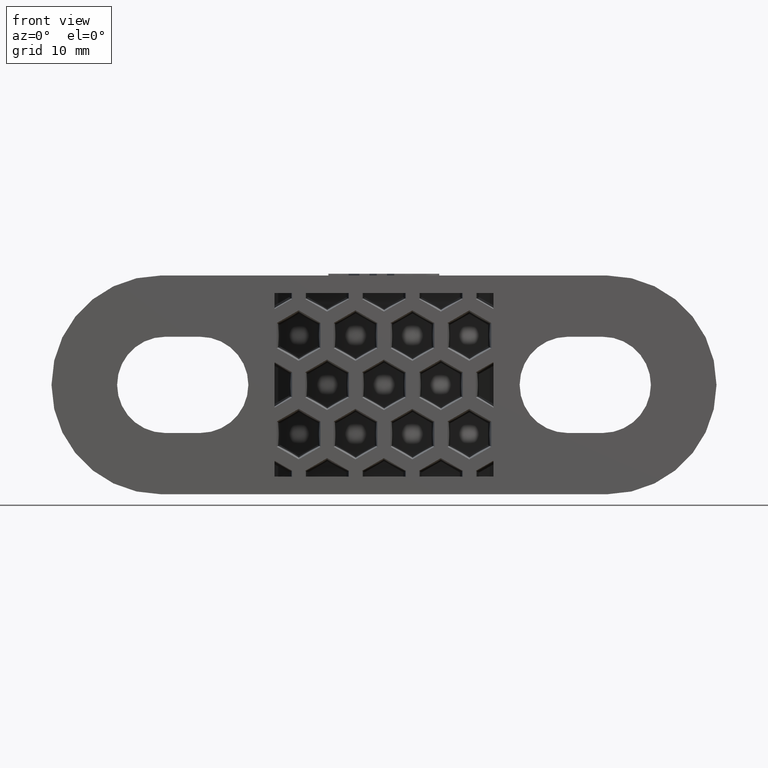
[diagram: clean part render]
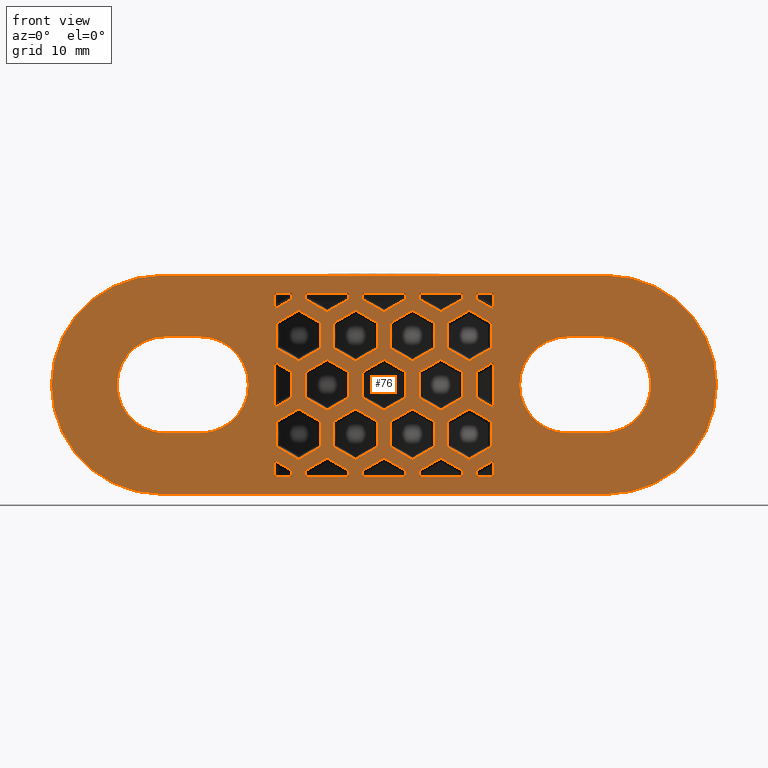
[diagram: same view with one face highlighted and labeled with its STEP entity id]
A machine part, front view. The second image highlights one B-rep face of the part: STEP entity #76.
In plain terms, the highlighted planar face has unit normal (0, -1, 0).
Its self-contained STEP definition (entity closure, byte-faithful):
#76 = ADVANCED_FACE( '', ( #313, #314, #315, #316, #317, #318, #319, #320, #321, #322, #323, #324, #325, #326, #327, #328, #329, #330, #331, #332, #333, #334, #335, #336, #337, #338 ), #339, .T. );
#313 = FACE_BOUND( '', #805, .T. );
#314 = FACE_BOUND( '', #806, .T. );
#315 = FACE_BOUND( '', #807, .T. );
#316 = FACE_BOUND( '', #808, .T. );
#317 = FACE_BOUND( '', #809, .T. );
#318 = FACE_BOUND( '', #810, .T. );
#319 = FACE_BOUND( '', #811, .T. );
#320 = FACE_BOUND( '', #812, .T. );
#321 = FACE_BOUND( '', #813, .T. );
#322 = FACE_BOUND( '', #814, .T. );
#323 = FACE_BOUND( '', #815, .T. );
#324 = FACE_BOUND( '', #816, .T. );
#325 = FACE_BOUND( '', #817, .T. );
#326 = FACE_OUTER_BOUND( '', #818, .T. );
#327 = FACE_BOUND( '', #819, .T. );
#328 = FACE_BOUND( '', #820, .T. );
#329 = FACE_BOUND( '', #821, .T. );
#330 = FACE_BOUND( '', #822, .T. );
#331 = FACE_BOUND( '', #823, .T. );
#332 = FACE_BOUND( '', #824, .T. );
#333 = FACE_BOUND( '', #825, .T. );
#334 = FACE_BOUND( '', #826, .T. );
#335 = FACE_BOUND( '', #827, .T. );
#336 = FACE_BOUND( '', #828, .T. );
#337 = FACE_BOUND( '', #829, .T. );
#338 = FACE_BOUND( '', #830, .T. );
#339 = PLANE( '', #831 );
#805 = EDGE_LOOP( '', ( #1859, #1860, #1861, #1862 ) );
#806 = EDGE_LOOP( '', ( #1863, #1864, #1865, #1866 ) );
#807 = EDGE_LOOP( '', ( #1867, #1868, #1869, #1870 ) );
#808 = EDGE_LOOP( '', ( #1871, #1872, #1873, #1874 ) );
#809 = EDGE_LOOP( '', ( #1875, #1876, #1877, #1878 ) );
#810 = EDGE_LOOP( '', ( #1879, #1880, #1881, #1882, #1883 ) );
#811 = EDGE_LOOP( '', ( #1884, #1885, #1886, #1887, #1888 ) );
#812 = EDGE_LOOP( '', ( #1889, #1890, #1891, #1892, #1893 ) );
#813 = EDGE_LOOP( '', ( #1894, #1895, #1896, #1897 ) );
#814 = EDGE_LOOP( '', ( #1898, #1899, #1900, #1901, #1902 ) );
#815 = EDGE_LOOP( '', ( #1903, #1904, #1905, #1906, #1907 ) );
#816 = EDGE_LOOP( '', ( #1908, #1909, #1910, #1911, #1912, #1913 ) );
#817 = EDGE_LOOP( '', ( #1914, #1915, #1916, #1917, #1918 ) );
#818 = EDGE_LOOP( '', ( #1919, #1920, #1921, #1922, #1923, #1924 ) );
#819 = EDGE_LOOP( '', ( #1925, #1926, #1927, #1928, #1929, #1930 ) );
#820 = EDGE_LOOP( '', ( #1931, #1932, #1933, #1934, #1935, #1936 ) );
#821 = EDGE_LOOP( '', ( #1937, #1938, #1939, #1940, #1941, #1942 ) );
#822 = EDGE_LOOP( '', ( #1943, #1944, #1945, #1946, #1947, #1948 ) );
#823 = EDGE_LOOP( '', ( #1949, #1950, #1951, #1952, #1953, #1954 ) );
#824 = EDGE_LOOP( '', ( #1955, #1956, #1957, #1958, #1959, #1960 ) );
#825 = EDGE_LOOP( '', ( #1961, #1962, #1963, #1964, #1965, #1966 ) );
#826 = EDGE_LOOP( '', ( #1967, #1968, #1969, #1970, #1971, #1972 ) );
#827 = EDGE_LOOP( '', ( #1973, #1974, #1975, #1976, #1977, #1978 ) );
#828 = EDGE_LOOP( '', ( #1979, #1980, #1981, #1982, #1983, #1984 ) );
#829 = EDGE_LOOP( '', ( #1985, #1986, #1987, #1988, #1989, #1990 ) );
#830 = EDGE_LOOP( '', ( #1991, #1992, #1993, #1994, #1995, #1996 ) );
#831 = AXIS2_PLACEMENT_3D( '', #1997, #1998, #1999 );
#1859 = ORIENTED_EDGE( '', *, *, #3686, .F. );
#1860 = ORIENTED_EDGE( '', *, *, #3687, .T. );
#1861 = ORIENTED_EDGE( '', *, *, #3688, .T. );
#1862 = ORIENTED_EDGE( '', *, *, #3689, .F. );
#1863 = ORIENTED_EDGE( '', *, *, #3690, .F. );
#1864 = ORIENTED_EDGE( '', *, *, #3691, .T. );
#1865 = ORIENTED_EDGE( '', *, *, #3692, .F. );
#1866 = ORIENTED_EDGE( '', *, *, #3693, .F. );
#1867 = ORIENTED_EDGE( '', *, *, #3694, .F. );
#1868 = ORIENTED_EDGE( '', *, *, #3695, .F. );
#1869 = ORIENTED_EDGE( '', *, *, #3696, .F. );
#1870 = ORIENTED_EDGE( '', *, *, #3697, .T. );
#1871 = ORIENTED_EDGE( '', *, *, #3698, .F. );
#1872 = ORIENTED_EDGE( '', *, *, #3699, .F. );
#1873 = ORIENTED_EDGE( '', *, *, #3700, .F. );
#1874 = ORIENTED_EDGE( '', *, *, #3701, .F. );
#1875 = ORIENTED_EDGE( '', *, *, #3702, .F. );
#1876 = ORIENTED_EDGE( '', *, *, #3703, .F. );
#1877 = ORIENTED_EDGE( '', *, *, #3704, .F. );
#1878 = ORIENTED_EDGE( '', *, *, #3705, .F. );
#1879 = ORIENTED_EDGE( '', *, *, #3706, .F. );
#1880 = ORIENTED_EDGE( '', *, *, #3707, .F. );
#1881 = ORIENTED_EDGE( '', *, *, #3708, .F. );
#1882 = ORIENTED_EDGE( '', *, *, #3709, .F. );
#1883 = ORIENTED_EDGE( '', *, *, #3710, .F. );
#1884 = ORIENTED_EDGE( '', *, *, #3711, .F. );
#1885 = ORIENTED_EDGE( '', *, *, #3712, .F. );
#1886 = ORIENTED_EDGE( '', *, *, #3713, .F. );
#1887 = ORIENTED_EDGE( '', *, *, #3714, .F. );
#1888 = ORIENTED_EDGE( '', *, *, #3715, .F. );
#1889 = ORIENTED_EDGE( '', *, *, #3716, .F. );
#1890 = ORIENTED_EDGE( '', *, *, #3717, .F. );
#1891 = ORIENTED_EDGE( '', *, *, #3718, .F. );
#1892 = ORIENTED_EDGE( '', *, *, #3719, .F. );
#1893 = ORIENTED_EDGE( '', *, *, #3720, .F. );
#1894 = ORIENTED_EDGE( '', *, *, #3721, .F. );
#1895 = ORIENTED_EDGE( '', *, *, #3722, .F. );
#1896 = ORIENTED_EDGE( '', *, *, #3723, .T. );
#1897 = ORIENTED_EDGE( '', *, *, #3724, .F. );
#1898 = ORIENTED_EDGE( '', *, *, #3725, .F. );
#1899 = ORIENTED_EDGE( '', *, *, #3726, .T. );
#1900 = ORIENTED_EDGE( '', *, *, #3727, .F. );
#1901 = ORIENTED_EDGE( '', *, *, #3728, .F. );
#1902 = ORIENTED_EDGE( '', *, *, #3729, .F. );
#1903 = ORIENTED_EDGE( '', *, *, #3730, .F. );
#1904 = ORIENTED_EDGE( '', *, *, #3731, .T. );
#1905 = ORIENTED_EDGE( '', *, *, #3732, .F. );
#1906 = ORIENTED_EDGE( '', *, *, #3733, .F. );
#1907 = ORIENTED_EDGE( '', *, *, #3734, .F. );
#1908 = ORIENTED_EDGE( '', *, *, #3735, .F. );
#1909 = ORIENTED_EDGE( '', *, *, #3736, .F. );
#1910 = ORIENTED_EDGE( '', *, *, #3737, .F. );
#1911 = ORIENTED_EDGE( '', *, *, #3738, .F. );
#1912 = ORIENTED_EDGE( '', *, *, #3739, .F. );
#1913 = ORIENTED_EDGE( '', *, *, #3740, .F. );
#1914 = ORIENTED_EDGE( '', *, *, #3741, .T. );
#1915 = ORIENTED_EDGE( '', *, *, #3742, .F. );
#1916 = ORIENTED_EDGE( '', *, *, #3743, .F. );
#1917 = ORIENTED_EDGE( '', *, *, #3744, .F. );
#1918 = ORIENTED_EDGE( '', *, *, #3745, .F. );
#1919 = ORIENTED_EDGE( '', *, *, #3664, .F. );
#1920 = ORIENTED_EDGE( '', *, *, #3746, .T. );
#1921 = ORIENTED_EDGE( '', *, *, #3747, .T. );
#1922 = ORIENTED_EDGE( '', *, *, #3748, .T. );
#1923 = ORIENTED_EDGE( '', *, *, #3749, .T. );
#1924 = ORIENTED_EDGE( '', *, *, #3750, .T. );
#1925 = ORIENTED_EDGE( '', *, *, #3751, .F. );
#1926 = ORIENTED_EDGE( '', *, *, #3752, .F. );
#1927 = ORIENTED_EDGE( '', *, *, #3753, .F. );
#1928 = ORIENTED_EDGE( '', *, *, #3754, .F. );
#1929 = ORIENTED_EDGE( '', *, *, #3755, .F. );
#1930 = ORIENTED_EDGE( '', *, *, #3756, .F. );
#1931 = ORIENTED_EDGE( '', *, *, #3757, .T. );
#1932 = ORIENTED_EDGE( '', *, *, #3758, .T. );
#1933 = ORIENTED_EDGE( '', *, *, #3759, .T. );
#1934 = ORIENTED_EDGE( '', *, *, #3760, .T. );
#1935 = ORIENTED_EDGE( '', *, *, #3761, .T. );
#1936 = ORIENTED_EDGE( '', *, *, #3762, .T. );
#1937 = ORIENTED_EDGE( '', *, *, #3763, .T. );
#1938 = ORIENTED_EDGE( '', *, *, #3764, .T. );
#1939 = ORIENTED_EDGE( '', *, *, #3765, .T. );
#1940 = ORIENTED_EDGE( '', *, *, #3766, .T. );
#1941 = ORIENTED_EDGE( '', *, *, #3767, .T. );
#1942 = ORIENTED_EDGE( '', *, *, #3768, .T. );
#1943 = ORIENTED_EDGE( '', *, *, #3769, .F. );
#1944 = ORIENTED_EDGE( '', *, *, #3770, .F. );
#1945 = ORIENTED_EDGE( '', *, *, #3771, .F. );
#1946 = ORIENTED_EDGE( '', *, *, #3772, .F. );
#1947 = ORIENTED_EDGE( '', *, *, #3773, .F. );
#1948 = ORIENTED_EDGE( '', *, *, #3774, .F. );
#1949 = ORIENTED_EDGE( '', *, *, #3775, .F. );
#1950 = ORIENTED_EDGE( '', *, *, #3776, .F. );
#1951 = ORIENTED_EDGE( '', *, *, #3777, .F. );
#1952 = ORIENTED_EDGE( '', *, *, #3778, .F. );
#1953 = ORIENTED_EDGE( '', *, *, #3779, .F. );
#1954 = ORIENTED_EDGE( '', *, *, #3780, .F. );
#1955 = ORIENTED_EDGE( '', *, *, #3781, .F. );
#1956 = ORIENTED_EDGE( '', *, *, #3782, .F. );
#1957 = ORIENTED_EDGE( '', *, *, #3783, .F. );
#1958 = ORIENTED_EDGE( '', *, *, #3784, .F. );
#1959 = ORIENTED_EDGE( '', *, *, #3785, .F. );
#1960 = ORIENTED_EDGE( '', *, *, #3786, .F. );
#1961 = ORIENTED_EDGE( '', *, *, #3787, .F. );
#1962 = ORIENTED_EDGE( '', *, *, #3788, .F. );
#1963 = ORIENTED_EDGE( '', *, *, #3789, .F. );
#1964 = ORIENTED_EDGE( '', *, *, #3790, .F. );
#1965 = ORIENTED_EDGE( '', *, *, #3791, .F. );
#1966 = ORIENTED_EDGE( '', *, *, #3792, .F. );
#1967 = ORIENTED_EDGE( '', *, *, #3793, .F. );
#1968 = ORIENTED_EDGE( '', *, *, #3794, .F. );
#1969 = ORIENTED_EDGE( '', *, *, #3795, .F. );
#1970 = ORIENTED_EDGE( '', *, *, #3796, .F. );
#1971 = ORIENTED_EDGE( '', *, *, #3797, .F. );
#1972 = ORIENTED_EDGE( '', *, *, #3798, .F. );
#1973 = ORIENTED_EDGE( '', *, *, #3799, .F. );
#1974 = ORIENTED_EDGE( '', *, *, #3800, .F. );
#1975 = ORIENTED_EDGE( '', *, *, #3801, .F. );
#1976 = ORIENTED_EDGE( '', *, *, #3802, .F. );
#1977 = ORIENTED_EDGE( '', *, *, #3803, .F. );
#1978 = ORIENTED_EDGE( '', *, *, #3804, .F. );
#1979 = ORIENTED_EDGE( '', *, *, #3805, .F. );
#1980 = ORIENTED_EDGE( '', *, *, #3806, .F. );
#1981 = ORIENTED_EDGE( '', *, *, #3807, .F. );
#1982 = ORIENTED_EDGE( '', *, *, #3808, .F. );
#1983 = ORIENTED_EDGE( '', *, *, #3809, .F. );
#1984 = ORIENTED_EDGE( '', *, *, #3810, .F. );
#1985 = ORIENTED_EDGE( '', *, *, #3811, .T. );
#1986 = ORIENTED_EDGE( '', *, *, #3812, .T. );
#1987 = ORIENTED_EDGE( '', *, *, #3813, .T. );
#1988 = ORIENTED_EDGE( '', *, *, #3814, .T. );
#1989 = ORIENTED_EDGE( '', *, *, #3815, .T. );
#1990 = ORIENTED_EDGE( '', *, *, #3816, .T. );
#1991 = ORIENTED_EDGE( '', *, *, #3817, .T. );
#1992 = ORIENTED_EDGE( '', *, *, #3818, .T. );
#1993 = ORIENTED_EDGE( '', *, *, #3819, .T. );
#1994 = ORIENTED_EDGE( '', *, *, #3820, .T. );
#1995 = ORIENTED_EDGE( '', *, *, #3821, .T. );
#1996 = ORIENTED_EDGE( '', *, *, #3822, .T. );
#1997 = CARTESIAN_POINT( '', ( -38.0000000000000, -6.93889390390723E-015, -12.5000000000000 ) );
#1998 = DIRECTION( '', ( 0.000000000000000, -1.00000000000000, 0.000000000000000 ) );
#1999 = DIRECTION( '', ( -1.00000000000000, 0.000000000000000, 0.000000000000000 ) );
#3664 = EDGE_CURVE( '', #4255, #4257, #4258, .T. );
#3686 = EDGE_CURVE( '', #4300, #4301, #4302, .T. );
#3687 = EDGE_CURVE( '', #4300, #4303, #4304, .T. );
#3688 = EDGE_CURVE( '', #4303, #4305, #4306, .T. );
#3689 = EDGE_CURVE( '', #4301, #4305, #4307, .T. );
#3690 = EDGE_CURVE( '', #4308, #4309, #4310, .T. );
#3691 = EDGE_CURVE( '', #4308, #4311, #4312, .T. );
#3692 = EDGE_CURVE( '', #4313, #4311, #4314, .T. );
#3693 = EDGE_CURVE( '', #4309, #4313, #4315, .T. );
#3694 = EDGE_CURVE( '', #4316, #4317, #4318, .T. );
#3695 = EDGE_CURVE( '', #4319, #4316, #4320, .T. );
#3696 = EDGE_CURVE( '', #4321, #4319, #4322, .T. );
#3697 = EDGE_CURVE( '', #4321, #4317, #4323, .T. );
#3698 = EDGE_CURVE( '', #4324, #4325, #4326, .T. );
#3699 = EDGE_CURVE( '', #4327, #4324, #4328, .T. );
#3700 = EDGE_CURVE( '', #4329, #4327, #4330, .T. );
#3701 = EDGE_CURVE( '', #4325, #4329, #4331, .T. );
#3702 = EDGE_CURVE( '', #4332, #4333, #4334, .T. );
#3703 = EDGE_CURVE( '', #4335, #4332, #4336, .T. );
#3704 = EDGE_CURVE( '', #4337, #4335, #4338, .T. );
#3705 = EDGE_CURVE( '', #4333, #4337, #4339, .T. );
#3706 = EDGE_CURVE( '', #4340, #4341, #4342, .T. );
#3707 = EDGE_CURVE( '', #4343, #4340, #4344, .T. );
#3708 = EDGE_CURVE( '', #4345, #4343, #4346, .T. );
#3709 = EDGE_CURVE( '', #4347, #4345, #4348, .T. );
#3710 = EDGE_CURVE( '', #4341, #4347, #4349, .T. );
#3711 = EDGE_CURVE( '', #4350, #4351, #4352, .T. );
#3712 = EDGE_CURVE( '', #4353, #4350, #4354, .T. );
#3713 = EDGE_CURVE( '', #4355, #4353, #4356, .T. );
#3714 = EDGE_CURVE( '', #4357, #4355, #4358, .T. );
#3715 = EDGE_CURVE( '', #4351, #4357, #4359, .T. );
#3716 = EDGE_CURVE( '', #4360, #4361, #4362, .T. );
#3717 = EDGE_CURVE( '', #4363, #4360, #4364, .T. );
#3718 = EDGE_CURVE( '', #4365, #4363, #4366, .T. );
#3719 = EDGE_CURVE( '', #4367, #4365, #4368, .T. );
#3720 = EDGE_CURVE( '', #4361, #4367, #4369, .T. );
#3721 = EDGE_CURVE( '', #4370, #4371, #4372, .T. );
#3722 = EDGE_CURVE( '', #4373, #4370, #4374, .T. );
#3723 = EDGE_CURVE( '', #4373, #4375, #4376, .T. );
#3724 = EDGE_CURVE( '', #4371, #4375, #4377, .T. );
#3725 = EDGE_CURVE( '', #4378, #4379, #4380, .T. );
#3726 = EDGE_CURVE( '', #4378, #4381, #4382, .T. );
#3727 = EDGE_CURVE( '', #4383, #4381, #4384, .T. );
#3728 = EDGE_CURVE( '', #4385, #4383, #4386, .T. );
#3729 = EDGE_CURVE( '', #4379, #4385, #4387, .T. );
#3730 = EDGE_CURVE( '', #4388, #4389, #4390, .T. );
#3731 = EDGE_CURVE( '', #4388, #4391, #4392, .T. );
#3732 = EDGE_CURVE( '', #4393, #4391, #4394, .T. );
#3733 = EDGE_CURVE( '', #4395, #4393, #4396, .T. );
#3734 = EDGE_CURVE( '', #4389, #4395, #4397, .T. );
#3735 = EDGE_CURVE( '', #4398, #4399, #4400, .F. );
#3736 = EDGE_CURVE( '', #4401, #4398, #4402, .F. );
#3737 = EDGE_CURVE( '', #4403, #4401, #4404, .F. );
#3738 = EDGE_CURVE( '', #4405, #4403, #4406, .F. );
#3739 = EDGE_CURVE( '', #4407, #4405, #4408, .F. );
#3740 = EDGE_CURVE( '', #4399, #4407, #4409, .F. );
#3741 = EDGE_CURVE( '', #4410, #4411, #4412, .T. );
#3742 = EDGE_CURVE( '', #4413, #4411, #4414, .T. );
#3743 = EDGE_CURVE( '', #4415, #4413, #4416, .T. );
#3744 = EDGE_CURVE( '', #4417, #4415, #4418, .T. );
#3745 = EDGE_CURVE( '', #4410, #4417, #4419, .T. );
#3746 = EDGE_CURVE( '', #4255, #4420, #4421, .T. );
#3747 = EDGE_CURVE( '', #4420, #4422, #4423, .T. );
#3748 = EDGE_CURVE( '', #4422, #4424, #4425, .T. );
#3749 = EDGE_CURVE( '', #4424, #4426, #4427, .T. );
#3750 = EDGE_CURVE( '', #4426, #4257, #4428, .T. );
#3751 = EDGE_CURVE( '', #4429, #4430, #4431, .F. );
#3752 = EDGE_CURVE( '', #4432, #4429, #4433, .F. );
#3753 = EDGE_CURVE( '', #4434, #4432, #4435, .F. );
#3754 = EDGE_CURVE( '', #4436, #4434, #4437, .F. );
#3755 = EDGE_CURVE( '', #4438, #4436, #4439, .F. );
#3756 = EDGE_CURVE( '', #4430, #4438, #4440, .F. );
#3757 = EDGE_CURVE( '', #4441, #4442, #4443, .F. );
#3758 = EDGE_CURVE( '', #4442, #4444, #4445, .F. );
#3759 = EDGE_CURVE( '', #4444, #4446, #4447, .F. );
#3760 = EDGE_CURVE( '', #4446, #4448, #4449, .F. );
#3761 = EDGE_CURVE( '', #4448, #4450, #4451, .F. );
#3762 = EDGE_CURVE( '', #4450, #4441, #4452, .F. );
#3763 = EDGE_CURVE( '', #4453, #4454, #4455, .F. );
#3764 = EDGE_CURVE( '', #4454, #4456, #4457, .F. );
#3765 = EDGE_CURVE( '', #4456, #4458, #4459, .F. );
#3766 = EDGE_CURVE( '', #4458, #4460, #4461, .F. );
#3767 = EDGE_CURVE( '', #4460, #4462, #4463, .F. );
#3768 = EDGE_CURVE( '', #4462, #4453, #4464, .F. );
#3769 = EDGE_CURVE( '', #4465, #4466, #4467, .T. );
#3770 = EDGE_CURVE( '', #4468, #4465, #4469, .T. );
#3771 = EDGE_CURVE( '', #4470, #4468, #4471, .T. );
#3772 = EDGE_CURVE( '', #4472, #4470, #4473, .T. );
#3773 = EDGE_CURVE( '', #4474, #4472, #4475, .T. );
#3774 = EDGE_CURVE( '', #4466, #4474, #4476, .T. );
#3775 = EDGE_CURVE( '', #4477, #4478, #4479, .T. );
#3776 = EDGE_CURVE( '', #4480, #4477, #4481, .T. );
#3777 = EDGE_CURVE( '', #4482, #4480, #4483, .T. );
#3778 = EDGE_CURVE( '', #4484, #4482, #4485, .T. );
#3779 = EDGE_CURVE( '', #4486, #4484, #4487, .T. );
#3780 = EDGE_CURVE( '', #4478, #4486, #4488, .T. );
#3781 = EDGE_CURVE( '', #4489, #4490, #4491, .T. );
#3782 = EDGE_CURVE( '', #4492, #4489, #4493, .T. );
#3783 = EDGE_CURVE( '', #4494, #4492, #4495, .T. );
#3784 = EDGE_CURVE( '', #4496, #4494, #4497, .T. );
#3785 = EDGE_CURVE( '', #4498, #4496, #4499, .T. );
#3786 = EDGE_CURVE( '', #4490, #4498, #4500, .T. );
#3787 = EDGE_CURVE( '', #4501, #4502, #4503, .T. );
#3788 = EDGE_CURVE( '', #4504, #4501, #4505, .T. );
#3789 = EDGE_CURVE( '', #4506, #4504, #4507, .T. );
#3790 = EDGE_CURVE( '', #4508, #4506, #4509, .T. );
#3791 = EDGE_CURVE( '', #4510, #4508, #4511, .T. );
#3792 = EDGE_CURVE( '', #4502, #4510, #4512, .T. );
#3793 = EDGE_CURVE( '', #4513, #4514, #4515, .T. );
#3794 = EDGE_CURVE( '', #4516, #4513, #4517, .T. );
#3795 = EDGE_CURVE( '', #4518, #4516, #4519, .T. );
#3796 = EDGE_CURVE( '', #4520, #4518, #4521, .T. );
#3797 = EDGE_CURVE( '', #4522, #4520, #4523, .T. );
#3798 = EDGE_CURVE( '', #4514, #4522, #4524, .T. );
#3799 = EDGE_CURVE( '', #4525, #4526, #4527, .T. );
#3800 = EDGE_CURVE( '', #4528, #4525, #4529, .T. );
#3801 = EDGE_CURVE( '', #4530, #4528, #4531, .T. );
#3802 = EDGE_CURVE( '', #4532, #4530, #4533, .T. );
#3803 = EDGE_CURVE( '', #4534, #4532, #4535, .T. );
#3804 = EDGE_CURVE( '', #4526, #4534, #4536, .T. );
#3805 = EDGE_CURVE( '', #4537, #4538, #4539, .T. );
#3806 = EDGE_CURVE( '', #4540, #4537, #4541, .T. );
#3807 = EDGE_CURVE( '', #4542, #4540, #4543, .T. );
#3808 = EDGE_CURVE( '', #4544, #4542, #4545, .T. );
#3809 = EDGE_CURVE( '', #4546, #4544, #4547, .T. );
#3810 = EDGE_CURVE( '', #4538, #4546, #4548, .T. );
#3811 = EDGE_CURVE( '', #4549, #4550, #4551, .F. );
#3812 = EDGE_CURVE( '', #4550, #4552, #4553, .F. );
#3813 = EDGE_CURVE( '', #4552, #4554, #4555, .F. );
#3814 = EDGE_CURVE( '', #4554, #4556, #4557, .F. );
#3815 = EDGE_CURVE( '', #4556, #4558, #4559, .F. );
#3816 = EDGE_CURVE( '', #4558, #4549, #4560, .F. );
#3817 = EDGE_CURVE( '', #4561, #4562, #4563, .F. );
#3818 = EDGE_CURVE( '', #4562, #4564, #4565, .F. );
#3819 = EDGE_CURVE( '', #4564, #4566, #4567, .F. );
#3820 = EDGE_CURVE( '', #4566, #4568, #4569, .F. );
#3821 = EDGE_CURVE( '', #4568, #4570, #4571, .F. );
#3822 = EDGE_CURVE( '', #4570, #4561, #4572, .F. );
#4255 = VERTEX_POINT( '', #5221 );
#4257 = VERTEX_POINT( '', #5224 );
#4258 = LINE( '', #5225, #5226 );
#4300 = VERTEX_POINT( '', #5287 );
#4301 = VERTEX_POINT( '', #5288 );
#4302 = LINE( '', #5289, #5290 );
#4303 = VERTEX_POINT( '', #5291 );
#4304 = LINE( '', #5292, #5293 );
#4305 = VERTEX_POINT( '', #5294 );
#4306 = LINE( '', #5295, #5296 );
#4307 = LINE( '', #5297, #5298 );
#4308 = VERTEX_POINT( '', #5299 );
#4309 = VERTEX_POINT( '', #5300 );
#4310 = LINE( '', #5301, #5302 );
#4311 = VERTEX_POINT( '', #5303 );
#4312 = LINE( '', #5304, #5305 );
#4313 = VERTEX_POINT( '', #5306 );
#4314 = LINE( '', #5307, #5308 );
#4315 = LINE( '', #5309, #5310 );
#4316 = VERTEX_POINT( '', #5311 );
#4317 = VERTEX_POINT( '', #5312 );
#4318 = LINE( '', #5313, #5314 );
#4319 = VERTEX_POINT( '', #5315 );
#4320 = LINE( '', #5316, #5317 );
#4321 = VERTEX_POINT( '', #5318 );
#4322 = LINE( '', #5319, #5320 );
#4323 = LINE( '', #5321, #5322 );
#4324 = VERTEX_POINT( '', #5323 );
#4325 = VERTEX_POINT( '', #5324 );
#4326 = LINE( '', #5325, #5326 );
#4327 = VERTEX_POINT( '', #5327 );
#4328 = LINE( '', #5328, #5329 );
#4329 = VERTEX_POINT( '', #5330 );
#4330 = LINE( '', #5331, #5332 );
#4331 = LINE( '', #5333, #5334 );
#4332 = VERTEX_POINT( '', #5335 );
#4333 = VERTEX_POINT( '', #5336 );
#4334 = LINE( '', #5337, #5338 );
#4335 = VERTEX_POINT( '', #5339 );
#4336 = LINE( '', #5340, #5341 );
#4337 = VERTEX_POINT( '', #5342 );
#4338 = LINE( '', #5343, #5344 );
#4339 = LINE( '', #5345, #5346 );
#4340 = VERTEX_POINT( '', #5347 );
#4341 = VERTEX_POINT( '', #5348 );
#4342 = LINE( '', #5349, #5350 );
#4343 = VERTEX_POINT( '', #5351 );
#4344 = LINE( '', #5352, #5353 );
#4345 = VERTEX_POINT( '', #5354 );
#4346 = LINE( '', #5355, #5356 );
#4347 = VERTEX_POINT( '', #5357 );
#4348 = LINE( '', #5358, #5359 );
#4349 = LINE( '', #5360, #5361 );
#4350 = VERTEX_POINT( '', #5362 );
#4351 = VERTEX_POINT( '', #5363 );
#4352 = LINE( '', #5364, #5365 );
#4353 = VERTEX_POINT( '', #5366 );
#4354 = LINE( '', #5367, #5368 );
#4355 = VERTEX_POINT( '', #5369 );
#4356 = LINE( '', #5370, #5371 );
#4357 = VERTEX_POINT( '', #5372 );
#4358 = LINE( '', #5373, #5374 );
#4359 = LINE( '', #5375, #5376 );
#4360 = VERTEX_POINT( '', #5377 );
#4361 = VERTEX_POINT( '', #5378 );
#4362 = LINE( '', #5379, #5380 );
#4363 = VERTEX_POINT( '', #5381 );
#4364 = LINE( '', #5382, #5383 );
#4365 = VERTEX_POINT( '', #5384 );
#4366 = LINE( '', #5385, #5386 );
#4367 = VERTEX_POINT( '', #5387 );
#4368 = LINE( '', #5388, #5389 );
#4369 = LINE( '', #5390, #5391 );
#4370 = VERTEX_POINT( '', #5392 );
#4371 = VERTEX_POINT( '', #5393 );
#4372 = LINE( '', #5394, #5395 );
#4373 = VERTEX_POINT( '', #5396 );
#4374 = LINE( '', #5397, #5398 );
#4375 = VERTEX_POINT( '', #5399 );
#4376 = LINE( '', #5400, #5401 );
#4377 = LINE( '', #5402, #5403 );
#4378 = VERTEX_POINT( '', #5404 );
#4379 = VERTEX_POINT( '', #5405 );
#4380 = LINE( '', #5406, #5407 );
#4381 = VERTEX_POINT( '', #5408 );
#4382 = LINE( '', #5409, #5410 );
#4383 = VERTEX_POINT( '', #5411 );
#4384 = LINE( '', #5412, #5413 );
#4385 = VERTEX_POINT( '', #5414 );
#4386 = LINE( '', #5415, #5416 );
#4387 = LINE( '', #5417, #5418 );
#4388 = VERTEX_POINT( '', #5419 );
#4389 = VERTEX_POINT( '', #5420 );
#4390 = LINE( '', #5421, #5422 );
#4391 = VERTEX_POINT( '', #5423 );
#4392 = LINE( '', #5424, #5425 );
#4393 = VERTEX_POINT( '', #5426 );
#4394 = LINE( '', #5427, #5428 );
#4395 = VERTEX_POINT( '', #5429 );
#4396 = LINE( '', #5430, #5431 );
#4397 = LINE( '', #5432, #5433 );
#4398 = VERTEX_POINT( '', #5434 );
#4399 = VERTEX_POINT( '', #5435 );
#4400 = LINE( '', #5436, #5437 );
#4401 = VERTEX_POINT( '', #5438 );
#4402 = CIRCLE( '', #5439, 5.50000000000000 );
#4403 = VERTEX_POINT( '', #5440 );
#4404 = CIRCLE( '', #5441, 5.50000000000000 );
#4405 = VERTEX_POINT( '', #5442 );
#4406 = LINE( '', #5443, #5444 );
#4407 = VERTEX_POINT( '', #5445 );
#4408 = CIRCLE( '', #5446, 5.50000000000000 );
#4409 = CIRCLE( '', #5447, 5.50000000000000 );
#4410 = VERTEX_POINT( '', #5448 );
#4411 = VERTEX_POINT( '', #5449 );
#4412 = LINE( '', #5450, #5451 );
#4413 = VERTEX_POINT( '', #5452 );
#4414 = LINE( '', #5453, #5454 );
#4415 = VERTEX_POINT( '', #5455 );
#4416 = LINE( '', #5456, #5457 );
#4417 = VERTEX_POINT( '', #5458 );
#4418 = LINE( '', #5459, #5460 );
#4419 = LINE( '', #5461, #5462 );
#4420 = VERTEX_POINT( '', #5463 );
#4421 = CIRCLE( '', #5464, 12.5000000000000 );
#4422 = VERTEX_POINT( '', #5465 );
#4423 = CIRCLE( '', #5466, 12.5000000000000 );
#4424 = VERTEX_POINT( '', #5467 );
#4425 = LINE( '', #5468, #5469 );
#4426 = VERTEX_POINT( '', #5470 );
#4427 = CIRCLE( '', #5471, 12.5000000000000 );
#4428 = CIRCLE( '', #5472, 12.5000000000000 );
#4429 = VERTEX_POINT( '', #5473 );
#4430 = VERTEX_POINT( '', #5474 );
#4431 = LINE( '', #5475, #5476 );
#4432 = VERTEX_POINT( '', #5477 );
#4433 = CIRCLE( '', #5478, 5.50000000000000 );
#4434 = VERTEX_POINT( '', #5479 );
#4435 = CIRCLE( '', #5480, 5.50000000000000 );
#4436 = VERTEX_POINT( '', #5481 );
#4437 = LINE( '', #5482, #5483 );
#4438 = VERTEX_POINT( '', #5484 );
#4439 = CIRCLE( '', #5485, 5.50000000000000 );
#4440 = CIRCLE( '', #5486, 5.50000000000000 );
#4441 = VERTEX_POINT( '', #5487 );
#4442 = VERTEX_POINT( '', #5488 );
#4443 = LINE( '', #5489, #5490 );
#4444 = VERTEX_POINT( '', #5491 );
#4445 = LINE( '', #5492, #5493 );
#4446 = VERTEX_POINT( '', #5494 );
#4447 = LINE( '', #5495, #5496 );
#4448 = VERTEX_POINT( '', #5497 );
#4449 = LINE( '', #5498, #5499 );
#4450 = VERTEX_POINT( '', #5500 );
#4451 = LINE( '', #5501, #5502 );
#4452 = LINE( '', #5503, #5504 );
#4453 = VERTEX_POINT( '', #5505 );
#4454 = VERTEX_POINT( '', #5506 );
#4455 = LINE( '', #5507, #5508 );
#4456 = VERTEX_POINT( '', #5509 );
#4457 = LINE( '', #5510, #5511 );
#4458 = VERTEX_POINT( '', #5512 );
#4459 = LINE( '', #5513, #5514 );
#4460 = VERTEX_POINT( '', #5515 );
#4461 = LINE( '', #5516, #5517 );
#4462 = VERTEX_POINT( '', #5518 );
#4463 = LINE( '', #5519, #5520 );
#4464 = LINE( '', #5521, #5522 );
#4465 = VERTEX_POINT( '', #5523 );
#4466 = VERTEX_POINT( '', #5524 );
#4467 = LINE( '', #5525, #5526 );
#4468 = VERTEX_POINT( '', #5527 );
#4469 = LINE( '', #5528, #5529 );
#4470 = VERTEX_POINT( '', #5530 );
#4471 = LINE( '', #5531, #5532 );
#4472 = VERTEX_POINT( '', #5533 );
#4473 = LINE( '', #5534, #5535 );
#4474 = VERTEX_POINT( '', #5536 );
#4475 = LINE( '', #5537, #5538 );
#4476 = LINE( '', #5539, #5540 );
#4477 = VERTEX_POINT( '', #5541 );
#4478 = VERTEX_POINT( '', #5542 );
#4479 = LINE( '', #5543, #5544 );
#4480 = VERTEX_POINT( '', #5545 );
#4481 = LINE( '', #5546, #5547 );
#4482 = VERTEX_POINT( '', #5548 );
#4483 = LINE( '', #5549, #5550 );
#4484 = VERTEX_POINT( '', #5551 );
#4485 = LINE( '', #5552, #5553 );
#4486 = VERTEX_POINT( '', #5554 );
#4487 = LINE( '', #5555, #5556 );
#4488 = LINE( '', #5557, #5558 );
#4489 = VERTEX_POINT( '', #5559 );
#4490 = VERTEX_POINT( '', #5560 );
#4491 = LINE( '', #5561, #5562 );
#4492 = VERTEX_POINT( '', #5563 );
#4493 = LINE( '', #5564, #5565 );
#4494 = VERTEX_POINT( '', #5566 );
#4495 = LINE( '', #5567, #5568 );
#4496 = VERTEX_POINT( '', #5569 );
#4497 = LINE( '', #5570, #5571 );
#4498 = VERTEX_POINT( '', #5572 );
#4499 = LINE( '', #5573, #5574 );
#4500 = LINE( '', #5575, #5576 );
#4501 = VERTEX_POINT( '', #5577 );
#4502 = VERTEX_POINT( '', #5578 );
#4503 = LINE( '', #5579, #5580 );
#4504 = VERTEX_POINT( '', #5581 );
#4505 = LINE( '', #5582, #5583 );
#4506 = VERTEX_POINT( '', #5584 );
#4507 = LINE( '', #5585, #5586 );
#4508 = VERTEX_POINT( '', #5587 );
#4509 = LINE( '', #5588, #5589 );
#4510 = VERTEX_POINT( '', #5590 );
#4511 = LINE( '', #5591, #5592 );
#4512 = LINE( '', #5593, #5594 );
#4513 = VERTEX_POINT( '', #5595 );
#4514 = VERTEX_POINT( '', #5596 );
#4515 = LINE( '', #5597, #5598 );
#4516 = VERTEX_POINT( '', #5599 );
#4517 = LINE( '', #5600, #5601 );
#4518 = VERTEX_POINT( '', #5602 );
#4519 = LINE( '', #5603, #5604 );
#4520 = VERTEX_POINT( '', #5605 );
#4521 = LINE( '', #5606, #5607 );
#4522 = VERTEX_POINT( '', #5608 );
#4523 = LINE( '', #5609, #5610 );
#4524 = LINE( '', #5611, #5612 );
#4525 = VERTEX_POINT( '', #5613 );
#4526 = VERTEX_POINT( '', #5614 );
#4527 = LINE( '', #5615, #5616 );
#4528 = VERTEX_POINT( '', #5617 );
#4529 = LINE( '', #5618, #5619 );
#4530 = VERTEX_POINT( '', #5620 );
#4531 = LINE( '', #5621, #5622 );
#4532 = VERTEX_POINT( '', #5623 );
#4533 = LINE( '', #5624, #5625 );
#4534 = VERTEX_POINT( '', #5626 );
#4535 = LINE( '', #5627, #5628 );
#4536 = LINE( '', #5629, #5630 );
#4537 = VERTEX_POINT( '', #5631 );
#4538 = VERTEX_POINT( '', #5632 );
#4539 = LINE( '', #5633, #5634 );
#4540 = VERTEX_POINT( '', #5635 );
#4541 = LINE( '', #5636, #5637 );
#4542 = VERTEX_POINT( '', #5638 );
#4543 = LINE( '', #5639, #5640 );
#4544 = VERTEX_POINT( '', #5641 );
#4545 = LINE( '', #5642, #5643 );
#4546 = VERTEX_POINT( '', #5644 );
#4547 = LINE( '', #5645, #5646 );
#4548 = LINE( '', #5647, #5648 );
#4549 = VERTEX_POINT( '', #5649 );
#4550 = VERTEX_POINT( '', #5650 );
#4551 = LINE( '', #5651, #5652 );
#4552 = VERTEX_POINT( '', #5653 );
#4553 = LINE( '', #5654, #5655 );
#4554 = VERTEX_POINT( '', #5656 );
#4555 = LINE( '', #5657, #5658 );
#4556 = VERTEX_POINT( '', #5659 );
#4557 = LINE( '', #5660, #5661 );
#4558 = VERTEX_POINT( '', #5662 );
#4559 = LINE( '', #5663, #5664 );
#4560 = LINE( '', #5665, #5666 );
#4561 = VERTEX_POINT( '', #5667 );
#4562 = VERTEX_POINT( '', #5668 );
#4563 = LINE( '', #5669, #5670 );
#4564 = VERTEX_POINT( '', #5671 );
#4565 = LINE( '', #5672, #5673 );
#4566 = VERTEX_POINT( '', #5674 );
#4567 = LINE( '', #5675, #5676 );
#4568 = VERTEX_POINT( '', #5677 );
#4569 = LINE( '', #5678, #5679 );
#4570 = VERTEX_POINT( '', #5680 );
#4571 = LINE( '', #5681, #5682 );
#4572 = LINE( '', #5683, #5684 );
#5221 = CARTESIAN_POINT( '', ( -25.5000000000000, -6.93889390390723E-015, 12.5000000000000 ) );
#5224 = CARTESIAN_POINT( '', ( 25.5000000000000, -6.93889390390723E-015, 12.5000000000000 ) );
#5225 = CARTESIAN_POINT( '', ( -38.0000000000000, -6.93889390390723E-015, 12.5000000000000 ) );
#5226 = VECTOR( '', #6588, 1000.00000000000 );
#5287 = CARTESIAN_POINT( '', ( -12.5000000000000, -6.93889390390723E-015, 8.65992378864669 ) );
#5288 = CARTESIAN_POINT( '', ( -10.5000000000000, -6.93889390390723E-015, 9.81462432702594 ) );
#5289 = CARTESIAN_POINT( '', ( -9.25000000000000, -6.93889390390723E-015, 10.5363121635130 ) );
#5290 = VECTOR( '', #6614, 1000.00000000000 );
#5291 = CARTESIAN_POINT( '', ( -12.5000000000000, -6.93889390390723E-015, 10.5000000000000 ) );
#5292 = CARTESIAN_POINT( '', ( -12.5000000000000, -6.93889390390723E-015, -10.5000000000000 ) );
#5293 = VECTOR( '', #6615, 1000.00000000000 );
#5294 = CARTESIAN_POINT( '', ( -10.5000000000000, -6.93889390390723E-015, 10.5000000000000 ) );
#5295 = CARTESIAN_POINT( '', ( -12.5000000000000, -6.93889390390723E-015, 10.5000000000000 ) );
#5296 = VECTOR( '', #6616, 1000.00000000000 );
#5297 = CARTESIAN_POINT( '', ( -10.5000000000000, -6.93889390390723E-015, 12.7013756729741 ) );
#5298 = VECTOR( '', #6617, 1000.00000000000 );
#5299 = CARTESIAN_POINT( '', ( -12.5000000000000, -6.93889390390723E-015, -2.59807621135332 ) );
#5300 = CARTESIAN_POINT( '', ( -10.5000000000000, -6.93889390390723E-015, -1.44337567297407 ) );
#5301 = CARTESIAN_POINT( '', ( -9.25000000000000, -6.93889390390723E-015, -0.721687836487033 ) );
#5302 = VECTOR( '', #6618, 1000.00000000000 );
#5303 = CARTESIAN_POINT( '', ( -12.5000000000000, -6.93889390390723E-015, 2.59807621135332 ) );
#5304 = CARTESIAN_POINT( '', ( -12.5000000000000, -6.93889390390723E-015, -10.5000000000000 ) );
#5305 = VECTOR( '', #6619, 1000.00000000000 );
#5306 = CARTESIAN_POINT( '', ( -10.5000000000000, -6.93889390390723E-015, 1.44337567297406 ) );
#5307 = CARTESIAN_POINT( '', ( -10.5000000000000, -6.93889390390723E-015, 1.44337567297407 ) );
#5308 = VECTOR( '', #6620, 1000.00000000000 );
#5309 = CARTESIAN_POINT( '', ( -10.5000000000000, -6.93889390390723E-015, 1.44337567297407 ) );
#5310 = VECTOR( '', #6621, 1000.00000000000 );
#5311 = CARTESIAN_POINT( '', ( 12.5000000000000, -6.93889390390723E-015, 8.65992378864669 ) );
#5312 = CARTESIAN_POINT( '', ( 12.5000000000000, -6.93889390390723E-015, 10.5000000000000 ) );
#5313 = CARTESIAN_POINT( '', ( 12.5000000000000, -6.93889390390723E-015, -10.5000000000000 ) );
#5314 = VECTOR( '', #6622, 1000.00000000000 );
#5315 = CARTESIAN_POINT( '', ( 10.5000000000000, -6.93889390390723E-015, 9.81462432702593 ) );
#5316 = CARTESIAN_POINT( '', ( 13.0000000000000, -6.93889390390723E-015, 8.37124865405187 ) );
#5317 = VECTOR( '', #6623, 1000.00000000000 );
#5318 = CARTESIAN_POINT( '', ( 10.5000000000000, -6.93889390390723E-015, 10.5000000000000 ) );
#5319 = CARTESIAN_POINT( '', ( 10.5000000000000, -6.93889390390723E-015, 12.7013756729741 ) );
#5320 = VECTOR( '', #6624, 1000.00000000000 );
#5321 = CARTESIAN_POINT( '', ( -12.5000000000000, -6.93889390390723E-015, 10.5000000000000 ) );
#5322 = VECTOR( '', #6625, 1000.00000000000 );
#5323 = CARTESIAN_POINT( '', ( 12.5000000000000, -6.93889390390723E-015, -2.59807621135331 ) );
#5324 = CARTESIAN_POINT( '', ( 12.5000000000000, -6.93889390390723E-015, 2.59807621135331 ) );
#5325 = CARTESIAN_POINT( '', ( 12.5000000000000, -6.93889390390723E-015, -10.5000000000000 ) );
#5326 = VECTOR( '', #6626, 1000.00000000000 );
#5327 = CARTESIAN_POINT( '', ( 10.5000000000000, -6.93889390390723E-015, -1.44337567297407 ) );
#5328 = CARTESIAN_POINT( '', ( 13.0000000000000, -6.93889390390723E-015, -2.88675134594813 ) );
#5329 = VECTOR( '', #6627, 1000.00000000000 );
#5330 = CARTESIAN_POINT( '', ( 10.5000000000000, -6.93889390390723E-015, 1.44337567297406 ) );
#5331 = CARTESIAN_POINT( '', ( 10.5000000000000, -6.93889390390723E-015, 1.44337567297406 ) );
#5332 = VECTOR( '', #6628, 1000.00000000000 );
#5333 = CARTESIAN_POINT( '', ( 14.2500000000000, -6.93889390390723E-015, 3.60843918243516 ) );
#5334 = VECTOR( '', #6629, 1000.00000000000 );
#5335 = CARTESIAN_POINT( '', ( 10.5000000000000, -6.93889390390723E-015, -10.5000000000000 ) );
#5336 = CARTESIAN_POINT( '', ( 12.5000000000000, -6.93889390390723E-015, -10.5000000000000 ) );
#5337 = CARTESIAN_POINT( '', ( -12.5000000000000, -6.93889390390723E-015, -10.5000000000000 ) );
#5338 = VECTOR( '', #6630, 1000.00000000000 );
#5339 = CARTESIAN_POINT( '', ( 10.5000000000000, -6.93889390390723E-015, -9.81462432702594 ) );
#5340 = CARTESIAN_POINT( '', ( 10.5000000000000, -6.93889390390723E-015, -9.81462432702594 ) );
#5341 = VECTOR( '', #6631, 1000.00000000000 );
#5342 = CARTESIAN_POINT( '', ( 12.5000000000000, -6.93889390390723E-015, -8.65992378864669 ) );
#5343 = CARTESIAN_POINT( '', ( 14.2500000000000, -6.93889390390723E-015, -7.64956081756484 ) );
#5344 = VECTOR( '', #6632, 1000.00000000000 );
#5345 = CARTESIAN_POINT( '', ( 12.5000000000000, -6.93889390390723E-015, -10.5000000000000 ) );
#5346 = VECTOR( '', #6633, 1000.00000000000 );
#5347 = CARTESIAN_POINT( '', ( 4.00000000000000, -6.93889390390723E-015, -10.5000000000000 ) );
#5348 = CARTESIAN_POINT( '', ( 9.00000000000000, -6.93889390390723E-015, -10.5000000000000 ) );
#5349 = CARTESIAN_POINT( '', ( -12.5000000000000, -6.93889390390723E-015, -10.5000000000000 ) );
#5350 = VECTOR( '', #6634, 1000.00000000000 );
#5351 = CARTESIAN_POINT( '', ( 4.00000000000000, -6.93889390390723E-015, -9.81462432702594 ) );
#5352 = CARTESIAN_POINT( '', ( 4.00000000000000, -6.93889390390723E-015, -9.81462432702594 ) );
#5353 = VECTOR( '', #6635, 1000.00000000000 );
#5354 = CARTESIAN_POINT( '', ( 6.50000000000000, -6.93889390390723E-015, -8.37124865405187 ) );
#5355 = CARTESIAN_POINT( '', ( 7.75000000000000, -6.93889390390723E-015, -7.64956081756484 ) );
#5356 = VECTOR( '', #6636, 1000.00000000000 );
#5357 = CARTESIAN_POINT( '', ( 9.00000000000000, -6.93889390390723E-015, -9.81462432702594 ) );
#5358 = CARTESIAN_POINT( '', ( 9.00000000000000, -6.93889390390723E-015, -9.81462432702594 ) );
#5359 = VECTOR( '', #6637, 1000.00000000000 );
#5360 = CARTESIAN_POINT( '', ( 9.00000000000000, -6.93889390390723E-015, -9.81462432702594 ) );
#5361 = VECTOR( '', #6638, 1000.00000000000 );
#5362 = CARTESIAN_POINT( '', ( -2.50000000000000, -6.93889390390723E-015, -10.5000000000000 ) );
#5363 = CARTESIAN_POINT( '', ( 2.50000000000000, -6.93889390390723E-015, -10.5000000000000 ) );
#5364 = CARTESIAN_POINT( '', ( -12.5000000000000, -6.93889390390723E-015, -10.5000000000000 ) );
#5365 = VECTOR( '', #6639, 1000.00000000000 );
#5366 = CARTESIAN_POINT( '', ( -2.50000000000000, -6.93889390390723E-015, -9.81462432702593 ) );
#5367 = CARTESIAN_POINT( '', ( -2.50000000000000, -6.93889390390723E-015, -9.81462432702594 ) );
#5368 = VECTOR( '', #6640, 1000.00000000000 );
#5369 = CARTESIAN_POINT( '', ( -4.33680868994202E-016, -6.93889390390723E-015, -8.37124865405187 ) );
#5370 = CARTESIAN_POINT( '', ( 1.25000000000000, -6.93889390390723E-015, -7.64956081756484 ) );
#5371 = VECTOR( '', #6641, 1000.00000000000 );
#5372 = CARTESIAN_POINT( '', ( 2.50000000000000, -6.93889390390723E-015, -9.81462432702593 ) );
#5373 = CARTESIAN_POINT( '', ( 2.50000000000000, -6.93889390390723E-015, -9.81462432702594 ) );
#5374 = VECTOR( '', #6642, 1000.00000000000 );
#5375 = CARTESIAN_POINT( '', ( 2.50000000000000, -6.93889390390723E-015, -9.81462432702594 ) );
#5376 = VECTOR( '', #6643, 1000.00000000000 );
#5377 = CARTESIAN_POINT( '', ( -9.00000000000000, -6.93889390390723E-015, -10.5000000000000 ) );
#5378 = CARTESIAN_POINT( '', ( -4.00000000000000, -6.93889390390723E-015, -10.5000000000000 ) );
#5379 = CARTESIAN_POINT( '', ( -12.5000000000000, -6.93889390390723E-015, -10.5000000000000 ) );
#5380 = VECTOR( '', #6644, 1000.00000000000 );
#5381 = CARTESIAN_POINT( '', ( -9.00000000000000, -6.93889390390723E-015, -9.81462432702593 ) );
#5382 = CARTESIAN_POINT( '', ( -9.00000000000000, -6.93889390390723E-015, -9.81462432702594 ) );
#5383 = VECTOR( '', #6645, 1000.00000000000 );
#5384 = CARTESIAN_POINT( '', ( -6.50000000000001, -6.93889390390723E-015, -8.37124865405187 ) );
#5385 = CARTESIAN_POINT( '', ( -5.25000000000000, -6.93889390390723E-015, -7.64956081756484 ) );
#5386 = VECTOR( '', #6646, 1000.00000000000 );
#5387 = CARTESIAN_POINT( '', ( -4.00000000000000, -6.93889390390723E-015, -9.81462432702594 ) );
#5388 = CARTESIAN_POINT( '', ( -4.00000000000000, -6.93889390390723E-015, -9.81462432702594 ) );
#5389 = VECTOR( '', #6647, 1000.00000000000 );
#5390 = CARTESIAN_POINT( '', ( -4.00000000000000, -6.93889390390723E-015, -9.81462432702594 ) );
#5391 = VECTOR( '', #6648, 1000.00000000000 );
#5392 = CARTESIAN_POINT( '', ( -10.5000000000000, -6.93889390390723E-015, -10.5000000000000 ) );
#5393 = CARTESIAN_POINT( '', ( -10.5000000000000, -6.93889390390723E-015, -9.81462432702593 ) );
#5394 = CARTESIAN_POINT( '', ( -10.5000000000000, -6.93889390390723E-015, -9.81462432702593 ) );
#5395 = VECTOR( '', #6649, 1000.00000000000 );
#5396 = CARTESIAN_POINT( '', ( -12.5000000000000, -6.93889390390723E-015, -10.5000000000000 ) );
#5397 = CARTESIAN_POINT( '', ( -12.5000000000000, -6.93889390390723E-015, -10.5000000000000 ) );
#5398 = VECTOR( '', #6650, 1000.00000000000 );
#5399 = CARTESIAN_POINT( '', ( -12.5000000000000, -6.93889390390723E-015, -8.65992378864668 ) );
#5400 = CARTESIAN_POINT( '', ( -12.5000000000000, -6.93889390390723E-015, -10.5000000000000 ) );
#5401 = VECTOR( '', #6651, 1000.00000000000 );
#5402 = CARTESIAN_POINT( '', ( -10.5000000000000, -6.93889390390723E-015, -9.81462432702593 ) );
#5403 = VECTOR( '', #6652, 1000.00000000000 );
#5404 = CARTESIAN_POINT( '', ( 4.00000000000000, -6.93889390390723E-015, 10.5000000000000 ) );
#5405 = CARTESIAN_POINT( '', ( 4.00000000000000, -6.93889390390723E-015, 9.81462432702594 ) );
#5406 = CARTESIAN_POINT( '', ( 4.00000000000000, -6.93889390390723E-015, 12.7013756729741 ) );
#5407 = VECTOR( '', #6653, 1000.00000000000 );
#5408 = CARTESIAN_POINT( '', ( 9.00000000000000, -6.93889390390723E-015, 10.5000000000000 ) );
#5409 = CARTESIAN_POINT( '', ( -12.5000000000000, -6.93889390390723E-015, 10.5000000000000 ) );
#5410 = VECTOR( '', #6654, 1000.00000000000 );
#5411 = CARTESIAN_POINT( '', ( 9.00000000000000, -6.93889390390723E-015, 9.81462432702593 ) );
#5412 = CARTESIAN_POINT( '', ( 9.00000000000000, -6.93889390390723E-015, 12.7013756729741 ) );
#5413 = VECTOR( '', #6655, 1000.00000000000 );
#5414 = CARTESIAN_POINT( '', ( 6.50000000000000, -6.93889390390723E-015, 8.37124865405187 ) );
#5415 = CARTESIAN_POINT( '', ( 10.2500000000000, -6.93889390390723E-015, 10.5363121635130 ) );
#5416 = VECTOR( '', #6656, 1000.00000000000 );
#5417 = CARTESIAN_POINT( '', ( 6.50000000000000, -6.93889390390723E-015, 8.37124865405187 ) );
#5418 = VECTOR( '', #6657, 1000.00000000000 );
#5419 = CARTESIAN_POINT( '', ( -2.50000000000000, -6.93889390390723E-015, 10.5000000000000 ) );
#5420 = CARTESIAN_POINT( '', ( -2.50000000000000, -6.93889390390723E-015, 9.81462432702594 ) );
#5421 = CARTESIAN_POINT( '', ( -2.50000000000000, -6.93889390390723E-015, 12.7013756729741 ) );
#5422 = VECTOR( '', #6658, 1000.00000000000 );
#5423 = CARTESIAN_POINT( '', ( 2.50000000000000, -6.93889390390723E-015, 10.5000000000000 ) );
#5424 = CARTESIAN_POINT( '', ( -12.5000000000000, -6.93889390390723E-015, 10.5000000000000 ) );
#5425 = VECTOR( '', #6659, 1000.00000000000 );
#5426 = CARTESIAN_POINT( '', ( 2.50000000000000, -6.93889390390723E-015, 9.81462432702593 ) );
#5427 = CARTESIAN_POINT( '', ( 2.50000000000000, -6.93889390390723E-015, 12.7013756729741 ) );
#5428 = VECTOR( '', #6660, 1000.00000000000 );
#5429 = CARTESIAN_POINT( '', ( 2.06036398283357E-015, -6.93889390390723E-015, 8.37124865405187 ) );
#5430 = CARTESIAN_POINT( '', ( 3.75000000000000, -6.93889390390723E-015, 10.5363121635130 ) );
#5431 = VECTOR( '', #6661, 1000.00000000000 );
#5432 = CARTESIAN_POINT( '', ( 2.60208521396521E-015, -6.93889390390723E-015, 8.37124865405187 ) );
#5433 = VECTOR( '', #6662, 1000.00000000000 );
#5434 = CARTESIAN_POINT( '', ( -25.0000000000000, -6.93889390390723E-015, -5.50000000000000 ) );
#5435 = CARTESIAN_POINT( '', ( -21.0000000000000, -6.93889390390723E-015, -5.50000000000000 ) );
#5436 = CARTESIAN_POINT( '', ( -25.0000000000000, -6.93889390390723E-015, -5.50000000000000 ) );
#5437 = VECTOR( '', #6663, 1000.00000000000 );
#5438 = CARTESIAN_POINT( '', ( -30.5000000000000, -6.93889390390723E-015, 2.84864859927010E-015 ) );
#5439 = AXIS2_PLACEMENT_3D( '', #6664, #6665, #6666 );
#5440 = CARTESIAN_POINT( '', ( -25.0000000000000, -6.93889390390723E-015, 5.50000000000000 ) );
#5441 = AXIS2_PLACEMENT_3D( '', #6667, #6668, #6669 );
#5442 = CARTESIAN_POINT( '', ( -21.0000000000000, -6.93889390390723E-015, 5.50000000000000 ) );
#5443 = CARTESIAN_POINT( '', ( -21.0000000000000, -6.93889390390723E-015, 5.50000000000000 ) );
#5444 = VECTOR( '', #6670, 1000.00000000000 );
#5445 = CARTESIAN_POINT( '', ( -15.5000000000000, -6.93889390390723E-015, -1.49649263611838E-016 ) );
#5446 = AXIS2_PLACEMENT_3D( '', #6671, #6672, #6673 );
#5447 = AXIS2_PLACEMENT_3D( '', #6674, #6675, #6676 );
#5448 = CARTESIAN_POINT( '', ( -9.00000000000000, -6.93889390390723E-015, 10.5000000000000 ) );
#5449 = CARTESIAN_POINT( '', ( -4.00000000000000, -6.93889390390723E-015, 10.5000000000000 ) );
#5450 = CARTESIAN_POINT( '', ( -12.5000000000000, -6.93889390390723E-015, 10.5000000000000 ) );
#5451 = VECTOR( '', #6677, 1000.00000000000 );
#5452 = CARTESIAN_POINT( '', ( -4.00000000000000, -6.93889390390723E-015, 9.81462432702593 ) );
#5453 = CARTESIAN_POINT( '', ( -4.00000000000000, -6.93889390390723E-015, 12.7013756729741 ) );
#5454 = VECTOR( '', #6678, 1000.00000000000 );
#5455 = CARTESIAN_POINT( '', ( -6.50000000000000, -6.93889390390723E-015, 8.37124865405187 ) );
#5456 = CARTESIAN_POINT( '', ( -2.75000000000000, -6.93889390390723E-015, 10.5363121635130 ) );
#5457 = VECTOR( '', #6679, 1000.00000000000 );
#5458 = CARTESIAN_POINT( '', ( -9.00000000000000, -6.93889390390723E-015, 9.81462432702594 ) );
#5459 = CARTESIAN_POINT( '', ( -6.50000000000000, -6.93889390390723E-015, 8.37124865405187 ) );
#5460 = VECTOR( '', #6680, 1000.00000000000 );
#5461 = CARTESIAN_POINT( '', ( -9.00000000000000, -6.93889390390723E-015, 12.7013756729741 ) );
#5462 = VECTOR( '', #6681, 1000.00000000000 );
#5463 = CARTESIAN_POINT( '', ( -38.0000000000000, -6.93889390390723E-015, 0.000000000000000 ) );
#5464 = AXIS2_PLACEMENT_3D( '', #6682, #6683, #6684 );
#5465 = CARTESIAN_POINT( '', ( -25.5000000000000, -6.93889390390723E-015, -12.5000000000000 ) );
#5466 = AXIS2_PLACEMENT_3D( '', #6685, #6686, #6687 );
#5467 = CARTESIAN_POINT( '', ( 25.5000000000000, -6.93889390390723E-015, -12.5000000000000 ) );
#5468 = CARTESIAN_POINT( '', ( -38.0000000000000, -6.93889390390723E-015, -12.5000000000000 ) );
#5469 = VECTOR( '', #6688, 1000.00000000000 );
#5470 = CARTESIAN_POINT( '', ( 38.0000000000000, -6.93889390390723E-015, 0.000000000000000 ) );
#5471 = AXIS2_PLACEMENT_3D( '', #6689, #6690, #6691 );
#5472 = AXIS2_PLACEMENT_3D( '', #6692, #6693, #6694 );
#5473 = CARTESIAN_POINT( '', ( 21.0000000000000, -6.93889390390723E-015, -5.50000000000000 ) );
#5474 = CARTESIAN_POINT( '', ( 25.0000000000000, -6.93889390390723E-015, -5.50000000000000 ) );
#5475 = CARTESIAN_POINT( '', ( 21.0000000000000, -6.93889390390723E-015, -5.50000000000000 ) );
#5476 = VECTOR( '', #6695, 1000.00000000000 );
#5477 = CARTESIAN_POINT( '', ( 15.5000000000000, -6.93889390390723E-015, -3.81558075427414E-015 ) );
#5478 = AXIS2_PLACEMENT_3D( '', #6696, #6697, #6698 );
#5479 = CARTESIAN_POINT( '', ( 21.0000000000000, -6.93889390390723E-015, 5.49999999999999 ) );
#5480 = AXIS2_PLACEMENT_3D( '', #6699, #6700, #6701 );
#5481 = CARTESIAN_POINT( '', ( 25.0000000000000, -6.93889390390723E-015, 5.50000000000000 ) );
#5482 = CARTESIAN_POINT( '', ( 25.0000000000000, -6.93889390390723E-015, 5.49999999999999 ) );
#5483 = VECTOR( '', #6702, 1000.00000000000 );
#5484 = CARTESIAN_POINT( '', ( 30.5000000000000, -6.93889390390723E-015, -2.76965995349548E-015 ) );
#5485 = AXIS2_PLACEMENT_3D( '', #6703, #6704, #6705 );
#5486 = AXIS2_PLACEMENT_3D( '', #6706, #6707, #6708 );
#5487 = CARTESIAN_POINT( '', ( 3.25000000000000, -6.93889390390723E-015, -2.74241377865072 ) );
#5488 = CARTESIAN_POINT( '', ( 5.75000000000000, -6.93889390390723E-015, -4.18578945162478 ) );
#5489 = CARTESIAN_POINT( '', ( 4.50000000000000, -6.93889390390723E-015, -3.46410161513775 ) );
#5490 = VECTOR( '', #6709, 1000.00000000000 );
#5491 = CARTESIAN_POINT( '', ( 5.75000000000000, -6.93889390390723E-015, -7.07254079757292 ) );
#5492 = CARTESIAN_POINT( '', ( 5.75000000000000, -6.93889390390723E-015, -1.29903810567666 ) );
#5493 = VECTOR( '', #6710, 1000.00000000000 );
#5494 = CARTESIAN_POINT( '', ( 3.25000000000000, -6.93889390390723E-015, -8.51591647054698 ) );
#5495 = CARTESIAN_POINT( '', ( 8.25000000000000, -6.93889390390723E-015, -5.62916512459885 ) );
#5496 = VECTOR( '', #6711, 1000.00000000000 );
#5497 = CARTESIAN_POINT( '', ( 0.750000000000002, -6.93889390390723E-015, -7.07254079757292 ) );
#5498 = CARTESIAN_POINT( '', ( 2.00000000000000, -6.93889390390723E-015, -7.79422863405995 ) );
#5499 = VECTOR( '', #6712, 1000.00000000000 );
#5500 = CARTESIAN_POINT( '', ( 0.750000000000003, -6.93889390390723E-015, -4.18578945162479 ) );
#5501 = CARTESIAN_POINT( '', ( 0.750000000000004, -6.93889390390723E-015, -1.29903810567666 ) );
#5502 = VECTOR( '', #6713, 1000.00000000000 );
#5503 = CARTESIAN_POINT( '', ( 5.75000000000000, -6.93889390390723E-015, -1.29903810567666 ) );
#5504 = VECTOR( '', #6714, 1000.00000000000 );
#5505 = CARTESIAN_POINT( '', ( -9.75000000000000, -6.93889390390723E-015, -2.74241377865072 ) );
#5506 = CARTESIAN_POINT( '', ( -7.25000000000000, -6.93889390390723E-015, -4.18578945162478 ) );
#5507 = CARTESIAN_POINT( '', ( -8.50000000000000, -6.93889390390723E-015, -3.46410161513775 ) );
#5508 = VECTOR( '', #6715, 1000.00000000000 );
#5509 = CARTESIAN_POINT( '', ( -7.25000000000000, -6.93889390390723E-015, -7.07254079757292 ) );
#5510 = CARTESIAN_POINT( '', ( -7.25000000000000, -6.93889390390723E-015, -1.29903810567666 ) );
#5511 = VECTOR( '', #6716, 1000.00000000000 );
#5512 = CARTESIAN_POINT( '', ( -9.75000000000000, -6.93889390390723E-015, -8.51591647054698 ) );
#5513 = CARTESIAN_POINT( '', ( -4.75000000000000, -6.93889390390723E-015, -5.62916512459885 ) );
#5514 = VECTOR( '', #6717, 1000.00000000000 );
#5515 = CARTESIAN_POINT( '', ( -12.2500000000000, -6.93889390390723E-015, -7.07254079757292 ) );
#5516 = CARTESIAN_POINT( '', ( -11.0000000000000, -6.93889390390723E-015, -7.79422863405995 ) );
#5517 = VECTOR( '', #6718, 1000.00000000000 );
#5518 = CARTESIAN_POINT( '', ( -12.2500000000000, -6.93889390390723E-015, -4.18578945162478 ) );
#5519 = CARTESIAN_POINT( '', ( -12.2500000000000, -6.93889390390723E-015, -1.29903810567665 ) );
#5520 = VECTOR( '', #6719, 1000.00000000000 );
#5521 = CARTESIAN_POINT( '', ( -7.25000000000000, -6.93889390390723E-015, -1.29903810567666 ) );
#5522 = VECTOR( '', #6720, 1000.00000000000 );
#5523 = CARTESIAN_POINT( '', ( -7.25000000000000, -6.93889390390723E-015, 4.18578945162478 ) );
#5524 = CARTESIAN_POINT( '', ( -7.25000000000000, -6.93889390390723E-015, 7.07254079757291 ) );
#5525 = CARTESIAN_POINT( '', ( -7.25000000000000, -6.93889390390723E-015, 1.44337567297407 ) );
#5526 = VECTOR( '', #6721, 1000.00000000000 );
#5527 = CARTESIAN_POINT( '', ( -9.75000000000000, -6.93889390390723E-015, 2.74241377865072 ) );
#5528 = CARTESIAN_POINT( '', ( -1.12500000000000, -6.93889390390723E-015, 7.72205985041124 ) );
#5529 = VECTOR( '', #6722, 1000.00000000000 );
#5530 = CARTESIAN_POINT( '', ( -12.2500000000000, -6.93889390390723E-015, 4.18578945162479 ) );
#5531 = CARTESIAN_POINT( '', ( 0.000000000000000, -6.93889390390723E-015, -2.88675134594813 ) );
#5532 = VECTOR( '', #6723, 1000.00000000000 );
#5533 = CARTESIAN_POINT( '', ( -12.2500000000000, -6.93889390390723E-015, 7.07254079757292 ) );
#5534 = CARTESIAN_POINT( '', ( -12.2500000000000, -6.93889390390723E-015, 1.44337567297406 ) );
#5535 = VECTOR( '', #6724, 1000.00000000000 );
#5536 = CARTESIAN_POINT( '', ( -9.75000000000000, -6.93889390390723E-015, 8.51591647054698 ) );
#5537 = CARTESIAN_POINT( '', ( -3.62500000000000, -6.93889390390723E-015, 12.0521868693334 ) );
#5538 = VECTOR( '', #6725, 1000.00000000000 );
#5539 = CARTESIAN_POINT( '', ( 2.50000000000000, -6.93889390390723E-015, 1.44337567297406 ) );
#5540 = VECTOR( '', #6726, 1000.00000000000 );
#5541 = CARTESIAN_POINT( '', ( -0.749999999999999, -6.93889390390723E-015, 4.18578945162478 ) );
#5542 = CARTESIAN_POINT( '', ( -0.749999999999997, -6.93889390390723E-015, 7.07254079757291 ) );
#5543 = CARTESIAN_POINT( '', ( -0.750000000000001, -6.93889390390723E-015, 1.44337567297407 ) );
#5544 = VECTOR( '', #6727, 1000.00000000000 );
#5545 = CARTESIAN_POINT( '', ( -3.25000000000000, -6.93889390390723E-015, 2.74241377865072 ) );
#5546 = CARTESIAN_POINT( '', ( 0.500000000000003, -6.93889390390723E-015, 4.90747728811182 ) );
#5547 = VECTOR( '', #6728, 1000.00000000000 );
#5548 = CARTESIAN_POINT( '', ( -5.75000000000000, -6.93889390390723E-015, 4.18578945162479 ) );
#5549 = CARTESIAN_POINT( '', ( 1.62500000000000, -6.93889390390723E-015, -0.0721687836487031 ) );
#5550 = VECTOR( '', #6729, 1000.00000000000 );
#5551 = CARTESIAN_POINT( '', ( -5.75000000000000, -6.93889390390723E-015, 7.07254079757292 ) );
#5552 = CARTESIAN_POINT( '', ( -5.75000000000000, -6.93889390390723E-015, 1.44337567297406 ) );
#5553 = VECTOR( '', #6730, 1000.00000000000 );
#5554 = CARTESIAN_POINT( '', ( -3.25000000000000, -6.93889390390723E-015, 8.51591647054698 ) );
#5555 = CARTESIAN_POINT( '', ( -2.00000000000000, -6.93889390390723E-015, 9.23760430703401 ) );
#5556 = VECTOR( '', #6731, 1000.00000000000 );
#5557 = CARTESIAN_POINT( '', ( 4.12500000000000, -6.93889390390723E-015, 4.25795823527349 ) );
#5558 = VECTOR( '', #6732, 1000.00000000000 );
#5559 = CARTESIAN_POINT( '', ( 12.2500000000000, -6.93889390390723E-015, 4.18578945162478 ) );
#5560 = CARTESIAN_POINT( '', ( 12.2500000000000, -6.93889390390723E-015, 7.07254079757291 ) );
#5561 = CARTESIAN_POINT( '', ( 12.2500000000000, -6.93889390390723E-015, 1.44337567297406 ) );
#5562 = VECTOR( '', #6733, 1000.00000000000 );
#5563 = CARTESIAN_POINT( '', ( 9.75000000000000, -6.93889390390723E-015, 2.74241377865072 ) );
#5564 = CARTESIAN_POINT( '', ( 3.75000000000000, -6.93889390390723E-015, -0.721687836487033 ) );
#5565 = VECTOR( '', #6734, 1000.00000000000 );
#5566 = CARTESIAN_POINT( '', ( 7.25000000000000, -6.93889390390723E-015, 4.18578945162479 ) );
#5567 = CARTESIAN_POINT( '', ( 4.87500000000000, -6.93889390390723E-015, 5.55699634095015 ) );
#5568 = VECTOR( '', #6735, 1000.00000000000 );
#5569 = CARTESIAN_POINT( '', ( 7.25000000000000, -6.93889390390723E-015, 7.07254079757291 ) );
#5570 = CARTESIAN_POINT( '', ( 7.25000000000000, -6.93889390390723E-015, 1.44337567297406 ) );
#5571 = VECTOR( '', #6736, 1000.00000000000 );
#5572 = CARTESIAN_POINT( '', ( 9.75000000000000, -6.93889390390723E-015, 8.51591647054698 ) );
#5573 = CARTESIAN_POINT( '', ( 1.25000000000000, -6.93889390390723E-015, 3.60843918243516 ) );
#5574 = VECTOR( '', #6737, 1000.00000000000 );
#5575 = CARTESIAN_POINT( '', ( 7.37500000000000, -6.93889390390723E-015, 9.88712335987234 ) );
#5576 = VECTOR( '', #6738, 1000.00000000000 );
#5577 = CARTESIAN_POINT( '', ( 5.75000000000000, -6.93889390390723E-015, 4.18578945162479 ) );
#5578 = CARTESIAN_POINT( '', ( 5.75000000000000, -6.93889390390723E-015, 7.07254079757291 ) );
#5579 = CARTESIAN_POINT( '', ( 5.75000000000000, -6.93889390390723E-015, 1.44337567297406 ) );
#5580 = VECTOR( '', #6739, 1000.00000000000 );
#5581 = CARTESIAN_POINT( '', ( 3.25000000000000, -6.93889390390723E-015, 2.74241377865072 ) );
#5582 = CARTESIAN_POINT( '', ( 2.12500000000000, -6.93889390390723E-015, 2.09289472581239 ) );
#5583 = VECTOR( '', #6740, 1000.00000000000 );
#5584 = CARTESIAN_POINT( '', ( 0.750000000000003, -6.93889390390723E-015, 4.18578945162479 ) );
#5585 = CARTESIAN_POINT( '', ( 3.25000000000000, -6.93889390390723E-015, 2.74241377865072 ) );
#5586 = VECTOR( '', #6741, 1000.00000000000 );
#5587 = CARTESIAN_POINT( '', ( 0.750000000000003, -6.93889390390723E-015, 7.07254079757292 ) );
#5588 = CARTESIAN_POINT( '', ( 0.750000000000003, -6.93889390390723E-015, 1.44337567297406 ) );
#5589 = VECTOR( '', #6742, 1000.00000000000 );
#5590 = CARTESIAN_POINT( '', ( 3.25000000000000, -6.93889390390723E-015, 8.51591647054698 ) );
#5591 = CARTESIAN_POINT( '', ( -0.375000000000000, -6.93889390390723E-015, 6.42302174473458 ) );
#5592 = VECTOR( '', #6743, 1000.00000000000 );
#5593 = CARTESIAN_POINT( '', ( 5.75000000000000, -6.93889390390723E-015, 7.07254079757291 ) );
#5594 = VECTOR( '', #6744, 1000.00000000000 );
#5595 = CARTESIAN_POINT( '', ( -4.00000000000000, -6.93889390390723E-015, -1.44337567297407 ) );
#5596 = CARTESIAN_POINT( '', ( -4.00000000000000, -6.93889390390723E-015, 1.44337567297406 ) );
#5597 = CARTESIAN_POINT( '', ( -4.00000000000000, -6.93889390390723E-015, 1.44337567297407 ) );
#5598 = VECTOR( '', #6745, 1000.00000000000 );
#5599 = CARTESIAN_POINT( '', ( -6.50000000000000, -6.93889390390723E-015, -2.88675134594813 ) );
#5600 = CARTESIAN_POINT( '', ( -2.75000000000000, -6.93889390390723E-015, -0.721687836487033 ) );
#5601 = VECTOR( '', #6746, 1000.00000000000 );
#5602 = CARTESIAN_POINT( '', ( -9.00000000000000, -6.93889390390723E-015, -1.44337567297406 ) );
#5603 = CARTESIAN_POINT( '', ( -6.50000000000000, -6.93889390390723E-015, -2.88675134594813 ) );
#5604 = VECTOR( '', #6747, 1000.00000000000 );
#5605 = CARTESIAN_POINT( '', ( -9.00000000000000, -6.93889390390723E-015, 1.44337567297407 ) );
#5606 = CARTESIAN_POINT( '', ( -9.00000000000000, -6.93889390390723E-015, 1.44337567297406 ) );
#5607 = VECTOR( '', #6748, 1000.00000000000 );
#5608 = CARTESIAN_POINT( '', ( -6.50000000000000, -6.93889390390723E-015, 2.88675134594813 ) );
#5609 = CARTESIAN_POINT( '', ( -5.25000000000000, -6.93889390390723E-015, 3.60843918243516 ) );
#5610 = VECTOR( '', #6749, 1000.00000000000 );
#5611 = CARTESIAN_POINT( '', ( -4.00000000000000, -6.93889390390723E-015, 1.44337567297406 ) );
#5612 = VECTOR( '', #6750, 1000.00000000000 );
#5613 = CARTESIAN_POINT( '', ( 9.00000000000000, -6.93889390390723E-015, -1.44337567297407 ) );
#5614 = CARTESIAN_POINT( '', ( 9.00000000000000, -6.93889390390723E-015, 1.44337567297407 ) );
#5615 = CARTESIAN_POINT( '', ( 9.00000000000000, -6.93889390390723E-015, 1.44337567297406 ) );
#5616 = VECTOR( '', #6751, 1000.00000000000 );
#5617 = CARTESIAN_POINT( '', ( 6.50000000000000, -6.93889390390723E-015, -2.88675134594813 ) );
#5618 = CARTESIAN_POINT( '', ( 10.2500000000000, -6.93889390390723E-015, -0.721687836487035 ) );
#5619 = VECTOR( '', #6752, 1000.00000000000 );
#5620 = CARTESIAN_POINT( '', ( 4.00000000000000, -6.93889390390723E-015, -1.44337567297406 ) );
#5621 = CARTESIAN_POINT( '', ( 6.50000000000000, -6.93889390390723E-015, -2.88675134594813 ) );
#5622 = VECTOR( '', #6753, 1000.00000000000 );
#5623 = CARTESIAN_POINT( '', ( 4.00000000000000, -6.93889390390723E-015, 1.44337567297407 ) );
#5624 = CARTESIAN_POINT( '', ( 4.00000000000000, -6.93889390390723E-015, 1.44337567297406 ) );
#5625 = VECTOR( '', #6754, 1000.00000000000 );
#5626 = CARTESIAN_POINT( '', ( 6.50000000000000, -6.93889390390723E-015, 2.88675134594813 ) );
#5627 = CARTESIAN_POINT( '', ( 7.75000000000000, -6.93889390390723E-015, 3.60843918243516 ) );
#5628 = VECTOR( '', #6755, 1000.00000000000 );
#5629 = CARTESIAN_POINT( '', ( 9.00000000000000, -6.93889390390723E-015, 1.44337567297407 ) );
#5630 = VECTOR( '', #6756, 1000.00000000000 );
#5631 = CARTESIAN_POINT( '', ( 2.50000000000000, -6.93889390390723E-015, -1.44337567297407 ) );
#5632 = CARTESIAN_POINT( '', ( 2.50000000000000, -6.93889390390723E-015, 1.44337567297406 ) );
#5633 = CARTESIAN_POINT( '', ( 2.50000000000000, -6.93889390390723E-015, 1.44337567297406 ) );
#5634 = VECTOR( '', #6757, 1000.00000000000 );
#5635 = CARTESIAN_POINT( '', ( -2.26900730996906E-015, -6.93889390390723E-015, -2.88675134594813 ) );
#5636 = CARTESIAN_POINT( '', ( 3.75000000000000, -6.93889390390723E-015, -0.721687836487034 ) );
#5637 = VECTOR( '', #6758, 1000.00000000000 );
#5638 = CARTESIAN_POINT( '', ( -2.50000000000000, -6.93889390390723E-015, -1.44337567297407 ) );
#5639 = CARTESIAN_POINT( '', ( -1.73472347597681E-015, -6.93889390390723E-015, -2.88675134594813 ) );
#5640 = VECTOR( '', #6759, 1000.00000000000 );
#5641 = CARTESIAN_POINT( '', ( -2.50000000000000, -6.93889390390723E-015, 1.44337567297407 ) );
#5642 = CARTESIAN_POINT( '', ( -2.50000000000000, -6.93889390390723E-015, 1.44337567297406 ) );
#5643 = VECTOR( '', #6760, 1000.00000000000 );
#5644 = CARTESIAN_POINT( '', ( 1.08370670929710E-016, -6.93889390390723E-015, 2.88675134594813 ) );
#5645 = CARTESIAN_POINT( '', ( 1.25000000000000, -6.93889390390723E-015, 3.60843918243516 ) );
#5646 = VECTOR( '', #6761, 1000.00000000000 );
#5647 = CARTESIAN_POINT( '', ( 2.50000000000000, -6.93889390390723E-015, 1.44337567297406 ) );
#5648 = VECTOR( '', #6762, 1000.00000000000 );
#5649 = CARTESIAN_POINT( '', ( -3.25000000000000, -6.93889390390723E-015, -2.74241377865072 ) );
#5650 = CARTESIAN_POINT( '', ( -0.749999999999999, -6.93889390390723E-015, -4.18578945162479 ) );
#5651 = CARTESIAN_POINT( '', ( -2.00000000000000, -6.93889390390723E-015, -3.46410161513775 ) );
#5652 = VECTOR( '', #6763, 1000.00000000000 );
#5653 = CARTESIAN_POINT( '', ( -0.749999999999998, -6.93889390390723E-015, -7.07254079757291 ) );
#5654 = CARTESIAN_POINT( '', ( -0.750000000000001, -6.93889390390723E-015, -1.29903810567666 ) );
#5655 = VECTOR( '', #6764, 1000.00000000000 );
#5656 = CARTESIAN_POINT( '', ( -3.25000000000000, -6.93889390390723E-015, -8.51591647054698 ) );
#5657 = CARTESIAN_POINT( '', ( 1.75000000000000, -6.93889390390723E-015, -5.62916512459885 ) );
#5658 = VECTOR( '', #6765, 1000.00000000000 );
#5659 = CARTESIAN_POINT( '', ( -5.75000000000000, -6.93889390390723E-015, -7.07254079757291 ) );
#5660 = CARTESIAN_POINT( '', ( -4.50000000000000, -6.93889390390723E-015, -7.79422863405995 ) );
#5661 = VECTOR( '', #6766, 1000.00000000000 );
#5662 = CARTESIAN_POINT( '', ( -5.75000000000000, -6.93889390390723E-015, -4.18578945162479 ) );
#5663 = CARTESIAN_POINT( '', ( -5.75000000000000, -6.93889390390723E-015, -1.29903810567665 ) );
#5664 = VECTOR( '', #6767, 1000.00000000000 );
#5665 = CARTESIAN_POINT( '', ( -0.749999999999998, -6.93889390390723E-015, -1.29903810567666 ) );
#5666 = VECTOR( '', #6768, 1000.00000000000 );
#5667 = CARTESIAN_POINT( '', ( 9.75000000000001, -6.93889390390723E-015, -2.74241377865072 ) );
#5668 = CARTESIAN_POINT( '', ( 12.2500000000000, -6.93889390390723E-015, -4.18578945162478 ) );
#5669 = CARTESIAN_POINT( '', ( 11.0000000000000, -6.93889390390723E-015, -3.46410161513775 ) );
#5670 = VECTOR( '', #6769, 1000.00000000000 );
#5671 = CARTESIAN_POINT( '', ( 12.2500000000000, -6.93889390390723E-015, -7.07254079757292 ) );
#5672 = CARTESIAN_POINT( '', ( 12.2500000000000, -6.93889390390723E-015, -1.29903810567666 ) );
#5673 = VECTOR( '', #6770, 1000.00000000000 );
#5674 = CARTESIAN_POINT( '', ( 9.75000000000000, -6.93889390390723E-015, -8.51591647054698 ) );
#5675 = CARTESIAN_POINT( '', ( 14.7500000000000, -6.93889390390723E-015, -5.62916512459885 ) );
#5676 = VECTOR( '', #6771, 1000.00000000000 );
#5677 = CARTESIAN_POINT( '', ( 7.25000000000000, -6.93889390390723E-015, -7.07254079757292 ) );
#5678 = CARTESIAN_POINT( '', ( 8.50000000000000, -6.93889390390723E-015, -7.79422863405995 ) );
#5679 = VECTOR( '', #6772, 1000.00000000000 );
#5680 = CARTESIAN_POINT( '', ( 7.25000000000000, -6.93889390390723E-015, -4.18578945162479 ) );
#5681 = CARTESIAN_POINT( '', ( 7.25000000000000, -6.93889390390723E-015, -1.29903810567666 ) );
#5682 = VECTOR( '', #6773, 1000.00000000000 );
#5683 = CARTESIAN_POINT( '', ( 12.2500000000000, -6.93889390390723E-015, -1.29903810567666 ) );
#5684 = VECTOR( '', #6774, 1000.00000000000 );
#6588 = DIRECTION( '', ( 1.00000000000000, 0.000000000000000, 0.000000000000000 ) );
#6614 = DIRECTION( '', ( 0.866025403784439, 0.000000000000000, 0.500000000000000 ) );
#6615 = DIRECTION( '', ( 0.000000000000000, 0.000000000000000, 1.00000000000000 ) );
#6616 = DIRECTION( '', ( 1.00000000000000, 0.000000000000000, 0.000000000000000 ) );
#6617 = DIRECTION( '', ( 4.99600361081321E-016, 0.000000000000000, 1.00000000000000 ) );
#6618 = DIRECTION( '', ( 0.866025403784439, 0.000000000000000, 0.500000000000000 ) );
#6619 = DIRECTION( '', ( 0.000000000000000, 0.000000000000000, 1.00000000000000 ) );
#6620 = DIRECTION( '', ( -0.866025403784439, 0.000000000000000, 0.500000000000000 ) );
#6621 = DIRECTION( '', ( 4.99600361081321E-016, 0.000000000000000, 1.00000000000000 ) );
#6622 = DIRECTION( '', ( 0.000000000000000, 0.000000000000000, 1.00000000000000 ) );
#6623 = DIRECTION( '', ( 0.866025403784438, 0.000000000000000, -0.500000000000000 ) );
#6624 = DIRECTION( '', ( 1.11022302462516E-016, 0.000000000000000, -1.00000000000000 ) );
#6625 = DIRECTION( '', ( 1.00000000000000, 0.000000000000000, 0.000000000000000 ) );
#6626 = DIRECTION( '', ( 0.000000000000000, 0.000000000000000, 1.00000000000000 ) );
#6627 = DIRECTION( '', ( 0.866025403784438, 0.000000000000000, -0.500000000000000 ) );
#6628 = DIRECTION( '', ( 1.11022302462516E-016, 0.000000000000000, -1.00000000000000 ) );
#6629 = DIRECTION( '', ( -0.866025403784439, 0.000000000000000, -0.500000000000000 ) );
#6630 = DIRECTION( '', ( 1.00000000000000, 0.000000000000000, 0.000000000000000 ) );
#6631 = DIRECTION( '', ( 1.11022302462516E-016, 0.000000000000000, -1.00000000000000 ) );
#6632 = DIRECTION( '', ( -0.866025403784439, 0.000000000000000, -0.500000000000000 ) );
#6633 = DIRECTION( '', ( 0.000000000000000, 0.000000000000000, 1.00000000000000 ) );
#6634 = DIRECTION( '', ( 1.00000000000000, 0.000000000000000, 0.000000000000000 ) );
#6635 = DIRECTION( '', ( 1.11022302462516E-016, 0.000000000000000, -1.00000000000000 ) );
#6636 = DIRECTION( '', ( -0.866025403784439, 0.000000000000000, -0.500000000000000 ) );
#6637 = DIRECTION( '', ( -0.866025403784439, 0.000000000000000, 0.500000000000000 ) );
#6638 = DIRECTION( '', ( 4.99600361081321E-016, 0.000000000000000, 1.00000000000000 ) );
#6639 = DIRECTION( '', ( 1.00000000000000, 0.000000000000000, 0.000000000000000 ) );
#6640 = DIRECTION( '', ( 1.11022302462516E-016, 0.000000000000000, -1.00000000000000 ) );
#6641 = DIRECTION( '', ( -0.866025403784439, 0.000000000000000, -0.500000000000000 ) );
#6642 = DIRECTION( '', ( -0.866025403784439, 0.000000000000000, 0.500000000000000 ) );
#6643 = DIRECTION( '', ( 4.99600361081321E-016, 0.000000000000000, 1.00000000000000 ) );
#6644 = DIRECTION( '', ( 1.00000000000000, 0.000000000000000, 0.000000000000000 ) );
#6645 = DIRECTION( '', ( 1.11022302462516E-016, 0.000000000000000, -1.00000000000000 ) );
#6646 = DIRECTION( '', ( -0.866025403784439, 0.000000000000000, -0.500000000000000 ) );
#6647 = DIRECTION( '', ( -0.866025403784439, 0.000000000000000, 0.500000000000000 ) );
#6648 = DIRECTION( '', ( 4.99600361081321E-016, 0.000000000000000, 1.00000000000000 ) );
#6649 = DIRECTION( '', ( 4.99600361081321E-016, 0.000000000000000, 1.00000000000000 ) );
#6650 = DIRECTION( '', ( 1.00000000000000, 0.000000000000000, 0.000000000000000 ) );
#6651 = DIRECTION( '', ( 0.000000000000000, 0.000000000000000, 1.00000000000000 ) );
#6652 = DIRECTION( '', ( -0.866025403784439, 0.000000000000000, 0.500000000000000 ) );
#6653 = DIRECTION( '', ( 1.11022302462516E-016, 0.000000000000000, -1.00000000000000 ) );
#6654 = DIRECTION( '', ( 1.00000000000000, 0.000000000000000, 0.000000000000000 ) );
#6655 = DIRECTION( '', ( 4.99600361081321E-016, 0.000000000000000, 1.00000000000000 ) );
#6656 = DIRECTION( '', ( 0.866025403784439, 0.000000000000000, 0.500000000000000 ) );
#6657 = DIRECTION( '', ( 0.866025403784438, 0.000000000000000, -0.500000000000000 ) );
#6658 = DIRECTION( '', ( 1.11022302462516E-016, 0.000000000000000, -1.00000000000000 ) );
#6659 = DIRECTION( '', ( 1.00000000000000, 0.000000000000000, 0.000000000000000 ) );
#6660 = DIRECTION( '', ( 4.99600361081321E-016, 0.000000000000000, 1.00000000000000 ) );
#6661 = DIRECTION( '', ( 0.866025403784439, 0.000000000000000, 0.500000000000000 ) );
#6662 = DIRECTION( '', ( 0.866025403784438, 0.000000000000000, -0.500000000000000 ) );
#6663 = DIRECTION( '', ( -1.00000000000000, 0.000000000000000, 1.15648231731787E-016 ) );
#6664 = CARTESIAN_POINT( '', ( -25.0000000000000, -6.93889390390723E-015, 8.67361737988404E-016 ) );
#6665 = DIRECTION( '', ( 0.000000000000000, 1.00000000000000, 0.000000000000000 ) );
#6666 = DIRECTION( '', ( 0.000000000000000, 0.000000000000000, 1.00000000000000 ) );
#6667 = CARTESIAN_POINT( '', ( -25.0000000000000, -6.93889390390723E-015, 2.60208521396521E-015 ) );
#6668 = DIRECTION( '', ( 0.000000000000000, 1.00000000000000, 0.000000000000000 ) );
#6669 = DIRECTION( '', ( 0.000000000000000, 0.000000000000000, 1.00000000000000 ) );
#6670 = DIRECTION( '', ( 1.00000000000000, 0.000000000000000, -1.15648231731787E-016 ) );
#6671 = CARTESIAN_POINT( '', ( -21.0000000000000, -6.93889390390723E-015, 1.73472347597681E-015 ) );
#6672 = DIRECTION( '', ( 0.000000000000000, 1.00000000000000, 0.000000000000000 ) );
#6673 = DIRECTION( '', ( 0.000000000000000, 0.000000000000000, 1.00000000000000 ) );
#6674 = CARTESIAN_POINT( '', ( -21.0000000000000, -6.93889390390723E-015, 0.000000000000000 ) );
#6675 = DIRECTION( '', ( 0.000000000000000, 1.00000000000000, 0.000000000000000 ) );
#6676 = DIRECTION( '', ( 0.000000000000000, 0.000000000000000, 1.00000000000000 ) );
#6677 = DIRECTION( '', ( 1.00000000000000, 0.000000000000000, 0.000000000000000 ) );
#6678 = DIRECTION( '', ( 4.99600361081321E-016, 0.000000000000000, 1.00000000000000 ) );
#6679 = DIRECTION( '', ( 0.866025403784439, 0.000000000000000, 0.500000000000000 ) );
#6680 = DIRECTION( '', ( 0.866025403784438, 0.000000000000000, -0.500000000000000 ) );
#6681 = DIRECTION( '', ( 1.11022302462516E-016, 0.000000000000000, -1.00000000000000 ) );
#6682 = CARTESIAN_POINT( '', ( -25.5000000000000, -6.93889390390723E-015, 0.000000000000000 ) );
#6683 = DIRECTION( '', ( 0.000000000000000, -1.00000000000000, 0.000000000000000 ) );
#6684 = DIRECTION( '', ( 0.000000000000000, 0.000000000000000, -1.00000000000000 ) );
#6685 = CARTESIAN_POINT( '', ( -25.5000000000000, -6.93889390390723E-015, 0.000000000000000 ) );
#6686 = DIRECTION( '', ( 0.000000000000000, -1.00000000000000, 0.000000000000000 ) );
#6687 = DIRECTION( '', ( 0.000000000000000, 0.000000000000000, -1.00000000000000 ) );
#6688 = DIRECTION( '', ( 1.00000000000000, 0.000000000000000, 0.000000000000000 ) );
#6689 = CARTESIAN_POINT( '', ( 25.5000000000000, -6.93889390390723E-015, 0.000000000000000 ) );
#6690 = DIRECTION( '', ( 0.000000000000000, -1.00000000000000, 0.000000000000000 ) );
#6691 = DIRECTION( '', ( 0.000000000000000, 0.000000000000000, -1.00000000000000 ) );
#6692 = CARTESIAN_POINT( '', ( 25.5000000000000, -6.93889390390723E-015, 0.000000000000000 ) );
#6693 = DIRECTION( '', ( 0.000000000000000, -1.00000000000000, 0.000000000000000 ) );
#6694 = DIRECTION( '', ( 0.000000000000000, 0.000000000000000, -1.00000000000000 ) );
#6695 = DIRECTION( '', ( -1.00000000000000, 0.000000000000000, 5.78241158658936E-017 ) );
#6696 = CARTESIAN_POINT( '', ( 21.0000000000000, -6.93889390390723E-015, -1.73472347597681E-015 ) );
#6697 = DIRECTION( '', ( 0.000000000000000, 1.00000000000000, 0.000000000000000 ) );
#6698 = DIRECTION( '', ( 0.000000000000000, 0.000000000000000, 1.00000000000000 ) );
#6699 = CARTESIAN_POINT( '', ( 21.0000000000000, -6.93889390390723E-015, -3.46944695195361E-015 ) );
#6700 = DIRECTION( '', ( 0.000000000000000, 1.00000000000000, 0.000000000000000 ) );
#6701 = DIRECTION( '', ( 0.000000000000000, 0.000000000000000, 1.00000000000000 ) );
#6702 = DIRECTION( '', ( 1.00000000000000, 0.000000000000000, -5.78241158658936E-017 ) );
#6703 = CARTESIAN_POINT( '', ( 25.0000000000000, -6.93889390390723E-015, -3.46944695195361E-015 ) );
#6704 = DIRECTION( '', ( 0.000000000000000, 1.00000000000000, 0.000000000000000 ) );
#6705 = DIRECTION( '', ( 0.000000000000000, 0.000000000000000, 1.00000000000000 ) );
#6706 = CARTESIAN_POINT( '', ( 25.0000000000000, -6.93889390390723E-015, -1.73472347597681E-015 ) );
#6707 = DIRECTION( '', ( 0.000000000000000, 1.00000000000000, 0.000000000000000 ) );
#6708 = DIRECTION( '', ( 0.000000000000000, 0.000000000000000, 1.00000000000000 ) );
#6709 = DIRECTION( '', ( -0.866025403784439, 0.000000000000000, 0.500000000000000 ) );
#6710 = DIRECTION( '', ( -4.99600361081321E-016, 0.000000000000000, 1.00000000000000 ) );
#6711 = DIRECTION( '', ( 0.866025403784439, 0.000000000000000, 0.500000000000000 ) );
#6712 = DIRECTION( '', ( 0.866025403784438, 0.000000000000000, -0.500000000000000 ) );
#6713 = DIRECTION( '', ( -2.77555756156289E-016, 0.000000000000000, -1.00000000000000 ) );
#6714 = DIRECTION( '', ( -0.866025403784439, 0.000000000000000, -0.500000000000000 ) );
#6715 = DIRECTION( '', ( -0.866025403784439, 0.000000000000000, 0.500000000000000 ) );
#6716 = DIRECTION( '', ( -4.99600361081321E-016, 0.000000000000000, 1.00000000000000 ) );
#6717 = DIRECTION( '', ( 0.866025403784439, 0.000000000000000, 0.500000000000000 ) );
#6718 = DIRECTION( '', ( 0.866025403784438, 0.000000000000000, -0.500000000000000 ) );
#6719 = DIRECTION( '', ( -2.77555756156289E-016, 0.000000000000000, -1.00000000000000 ) );
#6720 = DIRECTION( '', ( -0.866025403784439, 0.000000000000000, -0.500000000000000 ) );
#6721 = DIRECTION( '', ( 6.66133814775094E-016, 0.000000000000000, 1.00000000000000 ) );
#6722 = DIRECTION( '', ( 0.866025403784439, 0.000000000000000, 0.500000000000000 ) );
#6723 = DIRECTION( '', ( 0.866025403784439, 0.000000000000000, -0.500000000000000 ) );
#6724 = DIRECTION( '', ( 5.55111512312578E-017, 0.000000000000000, -1.00000000000000 ) );
#6725 = DIRECTION( '', ( -0.866025403784439, 0.000000000000000, -0.500000000000000 ) );
#6726 = DIRECTION( '', ( -0.866025403784438, 0.000000000000000, 0.500000000000000 ) );
#6727 = DIRECTION( '', ( 6.66133814775094E-016, 0.000000000000000, 1.00000000000000 ) );
#6728 = DIRECTION( '', ( 0.866025403784439, 0.000000000000000, 0.500000000000000 ) );
#6729 = DIRECTION( '', ( 0.866025403784439, 0.000000000000000, -0.500000000000000 ) );
#6730 = DIRECTION( '', ( 5.55111512312578E-017, 0.000000000000000, -1.00000000000000 ) );
#6731 = DIRECTION( '', ( -0.866025403784439, 0.000000000000000, -0.500000000000000 ) );
#6732 = DIRECTION( '', ( -0.866025403784438, 0.000000000000000, 0.500000000000000 ) );
#6733 = DIRECTION( '', ( 6.66133814775094E-016, 0.000000000000000, 1.00000000000000 ) );
#6734 = DIRECTION( '', ( 0.866025403784439, 0.000000000000000, 0.500000000000000 ) );
#6735 = DIRECTION( '', ( 0.866025403784439, 0.000000000000000, -0.500000000000000 ) );
#6736 = DIRECTION( '', ( 5.55111512312578E-017, 0.000000000000000, -1.00000000000000 ) );
#6737 = DIRECTION( '', ( -0.866025403784439, 0.000000000000000, -0.500000000000000 ) );
#6738 = DIRECTION( '', ( -0.866025403784438, 0.000000000000000, 0.500000000000000 ) );
#6739 = DIRECTION( '', ( 6.66133814775094E-016, 0.000000000000000, 1.00000000000000 ) );
#6740 = DIRECTION( '', ( 0.866025403784439, 0.000000000000000, 0.500000000000000 ) );
#6741 = DIRECTION( '', ( 0.866025403784439, 0.000000000000000, -0.500000000000000 ) );
#6742 = DIRECTION( '', ( 5.55111512312578E-017, 0.000000000000000, -1.00000000000000 ) );
#6743 = DIRECTION( '', ( -0.866025403784439, 0.000000000000000, -0.500000000000000 ) );
#6744 = DIRECTION( '', ( -0.866025403784438, 0.000000000000000, 0.500000000000000 ) );
#6745 = DIRECTION( '', ( 4.99600361081321E-016, 0.000000000000000, 1.00000000000000 ) );
#6746 = DIRECTION( '', ( 0.866025403784439, 0.000000000000000, 0.500000000000000 ) );
#6747 = DIRECTION( '', ( 0.866025403784438, 0.000000000000000, -0.500000000000000 ) );
#6748 = DIRECTION( '', ( 1.11022302462516E-016, 0.000000000000000, -1.00000000000000 ) );
#6749 = DIRECTION( '', ( -0.866025403784439, 0.000000000000000, -0.500000000000000 ) );
#6750 = DIRECTION( '', ( -0.866025403784439, 0.000000000000000, 0.500000000000000 ) );
#6751 = DIRECTION( '', ( 4.99600361081321E-016, 0.000000000000000, 1.00000000000000 ) );
#6752 = DIRECTION( '', ( 0.866025403784439, 0.000000000000000, 0.500000000000000 ) );
#6753 = DIRECTION( '', ( 0.866025403784438, 0.000000000000000, -0.500000000000000 ) );
#6754 = DIRECTION( '', ( 1.11022302462516E-016, 0.000000000000000, -1.00000000000000 ) );
#6755 = DIRECTION( '', ( -0.866025403784439, 0.000000000000000, -0.500000000000000 ) );
#6756 = DIRECTION( '', ( -0.866025403784439, 0.000000000000000, 0.500000000000000 ) );
#6757 = DIRECTION( '', ( 4.99600361081321E-016, 0.000000000000000, 1.00000000000000 ) );
#6758 = DIRECTION( '', ( 0.866025403784439, 0.000000000000000, 0.500000000000000 ) );
#6759 = DIRECTION( '', ( 0.866025403784438, 0.000000000000000, -0.500000000000000 ) );
#6760 = DIRECTION( '', ( 1.11022302462516E-016, 0.000000000000000, -1.00000000000000 ) );
#6761 = DIRECTION( '', ( -0.866025403784439, 0.000000000000000, -0.500000000000000 ) );
#6762 = DIRECTION( '', ( -0.866025403784439, 0.000000000000000, 0.500000000000000 ) );
#6763 = DIRECTION( '', ( -0.866025403784439, 0.000000000000000, 0.500000000000000 ) );
#6764 = DIRECTION( '', ( -4.99600361081321E-016, 0.000000000000000, 1.00000000000000 ) );
#6765 = DIRECTION( '', ( 0.866025403784439, 0.000000000000000, 0.500000000000000 ) );
#6766 = DIRECTION( '', ( 0.866025403784438, 0.000000000000000, -0.500000000000000 ) );
#6767 = DIRECTION( '', ( -2.77555756156289E-016, 0.000000000000000, -1.00000000000000 ) );
#6768 = DIRECTION( '', ( -0.866025403784439, 0.000000000000000, -0.500000000000000 ) );
#6769 = DIRECTION( '', ( -0.866025403784439, 0.000000000000000, 0.500000000000000 ) );
#6770 = DIRECTION( '', ( -4.99600361081321E-016, 0.000000000000000, 1.00000000000000 ) );
#6771 = DIRECTION( '', ( 0.866025403784439, 0.000000000000000, 0.500000000000000 ) );
#6772 = DIRECTION( '', ( 0.866025403784438, 0.000000000000000, -0.500000000000000 ) );
#6773 = DIRECTION( '', ( -2.77555756156289E-016, 0.000000000000000, -1.00000000000000 ) );
#6774 = DIRECTION( '', ( -0.866025403784439, 0.000000000000000, -0.500000000000000 ) );